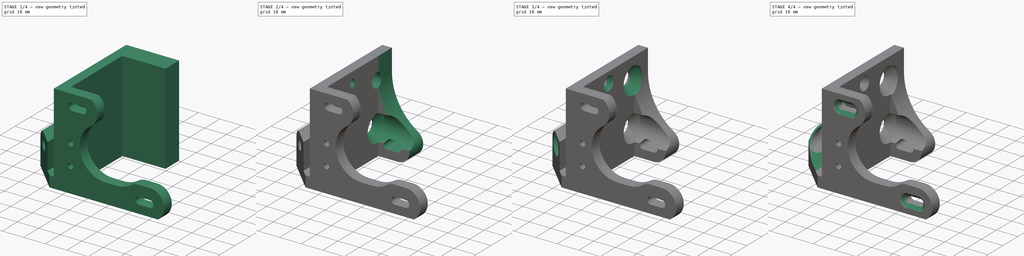
[diagram: build sequence overview — one tinted view per stage of 4, left to right]
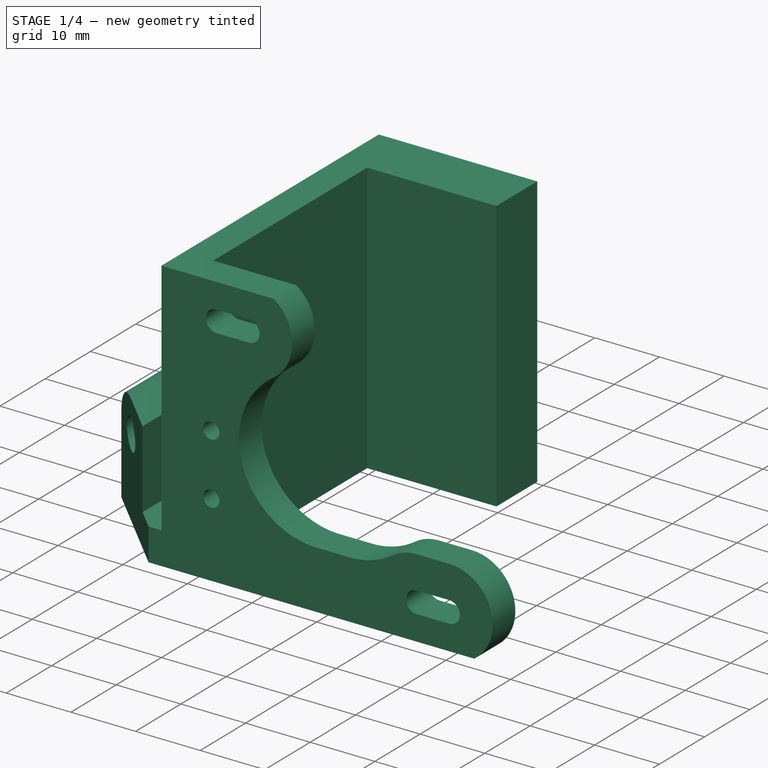
[diagram: stage 1 of 4 — iso view after this stage's code; geometry added in this stage tinted green]
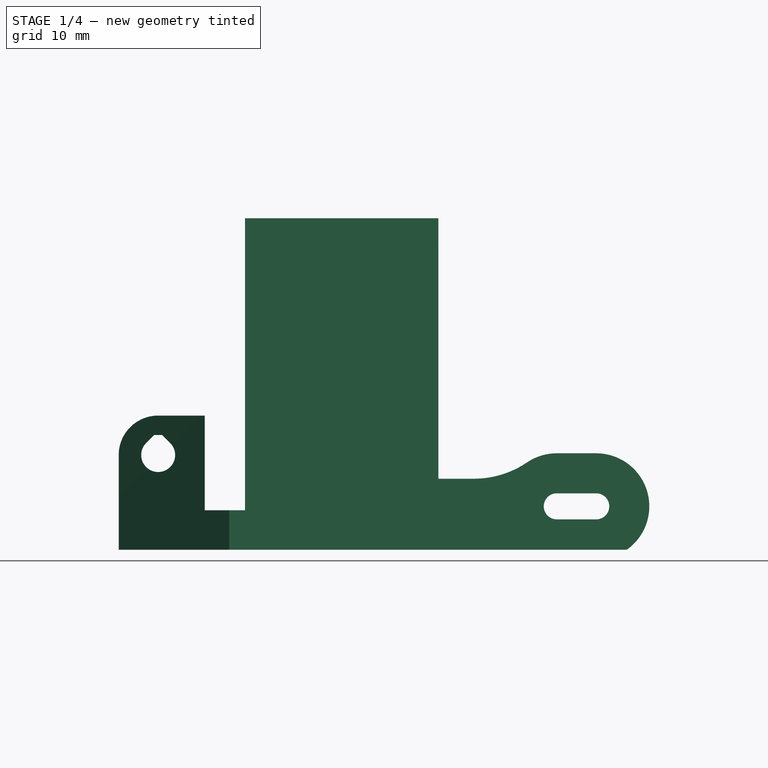
[diagram: stage 1 of 4 — front view after this stage's code; geometry added in this stage tinted green]
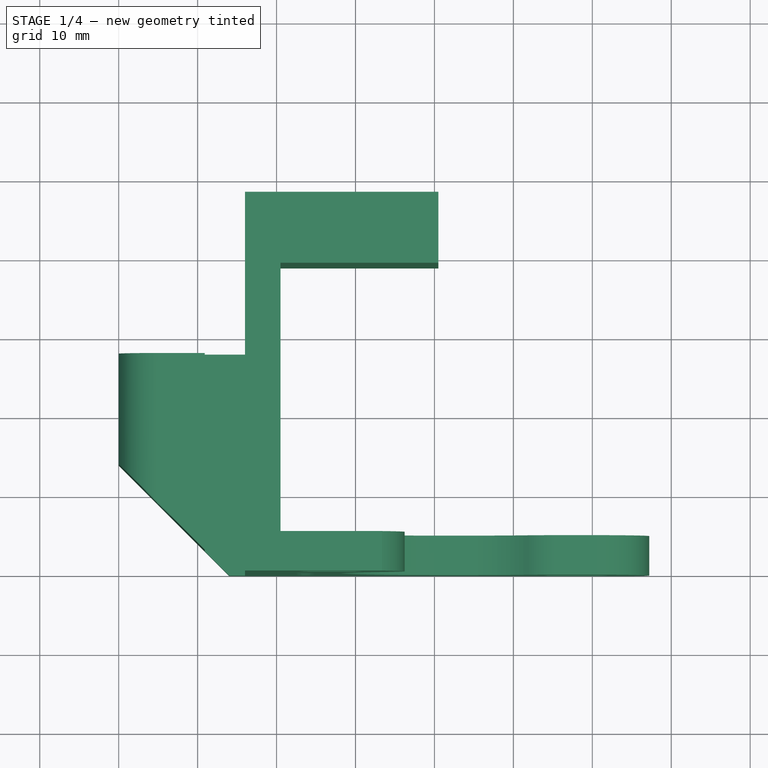
[diagram: stage 1 of 4 — top view after this stage's code; geometry added in this stage tinted green]
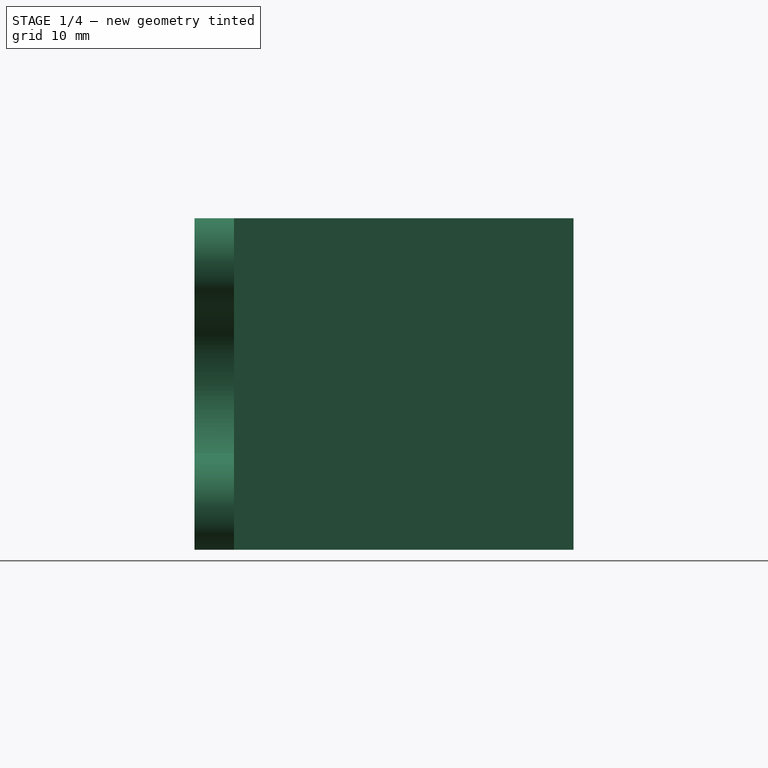
[diagram: stage 1 of 4 — right view after this stage's code; geometry added in this stage tinted green]
FCSTD DOCUMENT  (FreeCAD 0.17R13522 (Git))
Label: 02_548_y-motor-bracket
License: All rights reserved
LicenseURL: http://en.wikipedia.org/wiki/All_rights_reserved
objects: Sketcher::SketchObject×27, PartDesign::SubtractiveLoft×7, PartDesign::Pocket×5, PartDesign::Pad×1, Spreadsheet::Sheet×1, PartDesign::Body×1
note: 54 computed .brp shape members not serialized (recipe doc carries the construction recipe); baked Part::Feature solids carry a one-line shape summary decoded from their .brp

FEATURE [Sketcher::SketchObject] Sketch
  MapMode = 5
  Support = -> [XY_Plane]
  expr: Constraints[25] = sheet1.ExtrusionPlateX
  expr: Constraints[22] = sheet1.ExtrusionInsetX
  expr: Constraints[19] = sheet1.FacePlateDY
  expr: Constraints[21] = sheet1.dy
  expr: Constraints[23] = sheet1.ExtBossDy
  expr: Constraints[31] = sheet1.StepperDepth
  sketch-geometry (11):
    g0: LineSegment StartX=0 StartY=28 StartZ=0 EndX=0 EndY=14 EndZ=0
    g1: LineSegment StartX=0 StartY=14 StartZ=0 EndX=14 EndY=0 EndZ=0
    g2: LineSegment StartX=14 StartY=0 StartZ=0 EndX=67.5 EndY=0 EndZ=0
    g3: LineSegment StartX=67.5 StartY=0 StartZ=0 EndX=67.5 EndY=5 EndZ=0
    g4: LineSegment StartX=67.5 StartY=5 StartZ=0 EndX=20.5 EndY=5 EndZ=0
    g5: LineSegment StartX=20.5 StartY=5 StartZ=0 EndX=20.5 EndY=39 EndZ=0
    g6: LineSegment StartX=40.5 StartY=48 StartZ=0 EndX=16 EndY=48 EndZ=0
    g7: LineSegment StartX=16 StartY=48 StartZ=0 EndX=16 EndY=28 EndZ=0
    g8: LineSegment StartX=16 StartY=28 StartZ=0 EndX=0 EndY=28 EndZ=0
    g9: LineSegment StartX=40.5 StartY=48 StartZ=0 EndX=40.5 EndY=39 EndZ=0
    g10: LineSegment StartX=40.5 StartY=39 StartZ=0 EndX=20.5 EndY=39 EndZ=0
  constraints (33):
    c: Coincident(g0,g1)
    c: Coincident(g1,g2)
    c: Coincident(g2,g3)
    c: Coincident(g3,g4)
    c: Coincident(g4,g5)
    c: Coincident(g6,g7)
    c: Coincident(g7,g8)
    c: Horizontal(g8)
    c: Horizontal(g6)
    c: Horizontal(g4)
    c: Horizontal(g2)
    c: Vertical(g0)
    c: Vertical(g7)
    c: Vertical(g5)
    c: Vertical(g3)
    c: Angle(g1,g-1) = 0.785398
    c: Coincident(g8,g0)
    c: PointOnObject(g0,g-2)
    c: PointOnObject(g1,g-1)
    c: Distance(g3) = 5
    c: DistanceX(g-2,g2) = 67.5
    c: DistanceY(g-1,g6) = 48
    c: DistanceX(g-2,g7) = 16
    c: DistanceY(g-1,g0) = 28
    c: DistanceX(g-2,g1) = 14
    c: Distance(g5,g7) = 4.5
    c: Coincident(g9,g10)
    c: Horizontal(g10)
    c: Vertical(g9)
    c: Coincident(g10,g5)
    c: Coincident(g9,g6)
    c: Distance(g9,g4) = 34
    c: Distance(g9,g5) = 20
FEATURE [PartDesign::Pad] Pad
  Length = 42
  Length2 = 100
  Profile = -> Sketch
  Type = 0
FEATURE [Spreadsheet::Sheet] Spreadsheet  label="sheet1"
  cells = A1=Nema17BoltSpacing; B1(Nema17BoltSpacing)=31; A2=TensionLength; B2(TensionLength)=5; A3=SwitchBoltSpacing; B3(SwitchBoltSpacing)=9.5; A4=StepperH1X; B4(StepperH1X)=24.5; A5=StepperH2Z; B5(StepperH2Z)=5.5; A6=SwitchX; B6(SwitchX)=23.699999999999999; A7=SwitchH2Z; B7(SwitchH2Z)=11.5; A8=ExtrChannelBoltX; B8(ExtrChannelBoltX)=5; A9=ExtrChannelBoltZ; B9(ExtrChannelBoltZ)=12; A10=AcrylicSpace; B10(AcrylicSpace)=5.0999999999999996; A11=StepperFaceBoss; B11(StepperFaceBoss)=22; A12=M3Clearance; B12(M3Clearance)=3.2999999999999998; A13=SwitchSelfTap; B13(SwitchSelfTap)=2.5; A14=M4Clearance; B14(M4Clearance)=4.2999999999999998; A15=M6Clearance; B15(M6Clearance)=6.2999999999999998; A16=StepperDepth; B16(StepperDepth)=34; A17=dy; B17(dy)=48; A18=dz; B18(dz)=42; A19=ExtBossDy; B19(ExtBossDy)=28; A20=RailEndBolt2Z; B20(RailEndBolt2Z)=32; A21=RailEndBolt2Y; B21(RailEndBolt2Y)=10; A22=RailEndBolt1Z; B22(RailEndBolt1Z)=12; A23=RailEndBolt1Y; B23(RailEndBolt1Y)=10; A24=FacePlateDY; B24(FacePlateDY)=5; A25=ExtrusionInsetX; B25(ExtrusionInsetX)=16; A26=ExtrusionPlateX; B26(ExtrusionPlateX)=4.5; A27=SidePlateHole1Y; B27(SidePlateHole1Y)==sheet1.dy - 38; A28=SidePlateHole1Z; B28(SidePlateHole1Z)=12; A29=SidePlateHole2Y; B29(SidePlateHole2Y)==sheet1.dy - 26; A30=SidePlateHole2Z; B30(SidePlateHole2Z)=37; A31=RodHoleY; B31(RodHoleY)==sheet1.dy - 40; A32=RodHoleZ; B32(RodHoleZ)=30
FEATURE [Sketcher::SketchObject] Sketch002
  MapMode = 5
  Placement = pos=(0,0,0) rot=(1,0,0;1.5708rad)
  Support = -> [XZ_Plane]
  expr: Constraints[71] = sheet1.SwitchSelfTap / 2
  expr: Constraints[0] = sheet1.StepperH2Z
  expr: Constraints[50] = sheet1.StepperFaceBoss / 2 + 1
  expr: Constraints[45] = sheet1.dz
  expr: Constraints[43] = sheet1.M3Clearance / 2
  expr: Constraints[9] = sheet1.StepperH1X
  expr: Constraints[44] = sheet1.TensionLength
  expr: Constraints[25] = sheet1.AcrylicSpace
  expr: Constraints[11] = sheet1.ExtrChannelBoltX
  expr: Constraints[26] = sheet1.ExtrusionInsetX
  expr: Constraints[6] = sheet1.SwitchX
  expr: Constraints[2] = sheet1.Nema17BoltSpacing
  expr: Constraints[5] = sheet1.SwitchX
  expr: Constraints[73] = sheet1.M4Clearance / 2
  expr: Constraints[4] = sheet1.SwitchH2Z
  expr: Constraints[8] = sheet1.Nema17BoltSpacing / 2
  expr: Constraints[7] = sheet1.Nema17BoltSpacing / 2
  expr: Constraints[10] = sheet1.ExtrChannelBoltZ
  expr: Constraints[3] = sheet1.SwitchBoltSpacing
  expr: Constraints[1] = sheet1.Nema17BoltSpacing
  expr: Constraints[54] = sheet1.TensionLength
  sketch-geometry (37):
    g0: GeomPoint X=5 Y=12 Z=0
    g1: GeomPoint X=23.7 Y=11.5 Z=0
    g2: GeomPoint X=23.7 Y=21 Z=0
    g3: GeomPoint X=40 Y=21 Z=0
    g4: GeomPoint X=24.5 Y=36.5 Z=0
    g5: GeomPoint X=55.5 Y=5.5 Z=0
    g6: ArcOfCircle CenterX=5 CenterY=12 CenterZ=0 NormalX=0 NormalY=0 NormalZ=1 AngleXU=0 Radius=5 StartAngle=1.5708 EndAngle=3.14159
    g7: LineSegment StartX=5 StartY=17 StartZ=0 EndX=10.9 EndY=17 EndZ=0
    g8: LineSegment StartX=10.9 StartY=17 StartZ=0 EndX=10.9 EndY=5 EndZ=0
    g9: LineSegment StartX=10.9 StartY=5 StartZ=0 EndX=16 EndY=5 EndZ=0
    g10: LineSegment StartX=16 StartY=5 StartZ=0 EndX=16 EndY=42 EndZ=0
    g11: LineSegment StartX=16 StartY=42 StartZ=0 EndX=33.364 EndY=42 EndZ=0
    g12: ArcOfCircle [constr] CenterX=24.5 CenterY=36.5 CenterZ=0 NormalX=0 NormalY=0 NormalZ=1 AngleXU=0 Radius=1.65 StartAngle=1.5708 EndAngle=4.71239
    g13: ArcOfCircle [constr] CenterX=29.5 CenterY=36.5 CenterZ=0 NormalX=0 NormalY=0 NormalZ=1 AngleXU=0 Radius=1.65 StartAngle=4.71239 EndAngle=7.85398
    g14: LineSegment [constr] StartX=24.5 StartY=34.85 StartZ=0 EndX=29.5 EndY=34.85 EndZ=0
    g15: LineSegment [constr] StartX=24.5 StartY=38.15 StartZ=0 EndX=29.5 EndY=38.15 EndZ=0
    g16: ArcOfCircle [constr] CenterX=55.5 CenterY=5.5 CenterZ=0 NormalX=0 NormalY=0 NormalZ=1 AngleXU=0 Radius=1.65 StartAngle=1.5708 EndAngle=4.71239
    g17: ArcOfCircle [constr] CenterX=60.5 CenterY=5.5 CenterZ=0 NormalX=0 NormalY=0 NormalZ=1 AngleXU=0 Radius=1.65 StartAngle=4.71239 EndAngle=7.85398
    g18: LineSegment [constr] StartX=55.5 StartY=3.85 StartZ=0 EndX=60.5 EndY=3.85 EndZ=0
    g19: LineSegment [constr] StartX=55.5 StartY=7.15 StartZ=0 EndX=60.5 EndY=7.15 EndZ=0
    g20: ArcOfCircle CenterX=29.5 CenterY=36.5 CenterZ=0 NormalX=0 NormalY=0 NormalZ=1 AngleXU=0 Radius=6.72165 StartAngle=5.3078 EndAngle=7.24155
    g21: ArcOfCircle CenterX=40 CenterY=21 CenterZ=0 NormalX=0 NormalY=0 NormalZ=1 AngleXU=0 Radius=12 StartAngle=2.16621 EndAngle=4.71239
    g22: LineSegment StartX=40 StartY=9 StartZ=0 EndX=45 EndY=9 EndZ=0
    g23: LineSegment [constr] StartX=40 StartY=21 StartZ=0 EndX=45 EndY=21 EndZ=0
    g24: ArcOfCircle CenterX=45 CenterY=21 CenterZ=0 NormalX=0 NormalY=0 NormalZ=1 AngleXU=0 Radius=12 StartAngle=4.71239 EndAngle=5.3078
    g25: ArcOfCircle CenterX=55.5 CenterY=5.5 CenterZ=0 NormalX=0 NormalY=0 NormalZ=1 AngleXU=0 Radius=6.72165 StartAngle=1.5708 EndAngle=2.16621
    g26: LineSegment StartX=55.5 StartY=12.2216 StartZ=0 EndX=60.5 EndY=12.2216 EndZ=0
    g27: ArcOfCircle CenterX=60.5 CenterY=5.5 CenterZ=0 NormalX=0 NormalY=0 NormalZ=1 AngleXU=0 Radius=6.72165 StartAngle=5.32482 EndAngle=7.85398
    g28: Circle [constr] CenterX=23.7 CenterY=11.5 CenterZ=0 NormalX=0 NormalY=0 NormalZ=1 AngleXU=0 Radius=1.25
    g29: Circle [constr] CenterX=23.7 CenterY=21 CenterZ=0 NormalX=0 NormalY=0 NormalZ=1 AngleXU=0 Radius=1.25
    g30: Circle [constr] CenterX=5 CenterY=12 CenterZ=0 NormalX=0 NormalY=0 NormalZ=1 AngleXU=0 Radius=2.15
    g31: LineSegment StartX=-5 StartY=47 StartZ=0 EndX=69.364 EndY=47 EndZ=0
    g32: LineSegment StartX=69.364 StartY=47 StartZ=0 EndX=69.364 EndY=-5 EndZ=0
    g33: LineSegment StartX=69.364 StartY=-5 StartZ=0 EndX=-5 EndY=-5 EndZ=0
    g34: LineSegment StartX=-5 StartY=-5 StartZ=0 EndX=-5 EndY=47 EndZ=0
    g35: LineSegment StartX=0 StartY=12 StartZ=0 EndX=0 EndY=0 EndZ=0
    g36: LineSegment StartX=0 StartY=0 StartZ=0 EndX=64.364 EndY=0 EndZ=0
  constraints (91):
    c: DistanceY(g-1,g5) = 5.5
    c: DistanceX(g4,g5) = 31
    c: DistanceY(g5,g4) = 31
    c: DistanceY(g1,g2) = 9.5
    c: DistanceY(g-1,g1) = 11.5
    c: DistanceX(g-2,g2) = 23.7
    c: DistanceX(g-2,g1) = 23.7
    c: DistanceX(g3,g5) = 15.5
    c: DistanceY(g5,g3) = 15.5
    c: DistanceX(g-2,g4) = 24.5
    c: DistanceY(g-1,g0) = 12
    c: DistanceX(g-1,g0) = 5
    c: Coincident(g6,g0)
    c: PointOnObject(g6,g-2)
    c: Tangent(g6,g-2)
    c: Coincident(g7,g8)
    c: Coincident(g8,g9)
    c: Coincident(g9,g10)
    c: Coincident(g10,g11)
    c: Horizontal(g7)
    c: Horizontal(g9)
    c: Horizontal(g11)
    c: Vertical(g8)
    c: Vertical(g10)
    c: Tangent(g6,g7) = 1.5708
    c: Distance(g9) = 5.1
    c: DistanceX(g-2,g9) = 16
    c: Tangent(g12,g15) = 1.5708
    c: Tangent(g12,g14) = -1.5708
    c: Tangent(g14,g13) = -1.5708
    c: Tangent(g15,g13) = 1.5708
    c: Horizontal(g14)
    c: Equal(g12,g13)
    c: Coincident(g12,g4)
    c: Tangent(g16,g19) = 1.5708
    c: Tangent(g16,g18) = -1.5708
    c: Tangent(g18,g17) = -1.5708
    c: Tangent(g19,g17) = 1.5708
    c: Horizontal(g18)
    c: Equal(g16,g17)
    c: Coincident(g16,g5)
    c: Equal(g12,g16)
    c: Equal(g15,g19)
    c: Radius(g13) = 1.65
    c: Distance(g15) = 5
    c: DistanceY(g-1,g10) = 42
    c: Coincident(g20,g11)
    c: Coincident(g20,g13)
    c: Coincident(g3,g21)
    c: Tangent(g21,g20) = 1.5708
    c: Radius(g21) = 12
    c: DistanceY(g-1,g9) = 5
    c: Horizontal(g22)
    c: Tangent(g22,g21) = -1.5708
    c: Distance(g22) = 5
    c: Horizontal(g23)
    c: Coincident(g23,g3)
    c: Coincident(g24,g23)
    c: Tangent(g24,g22) = -1.5708
    c: Coincident(g25,g26)
    c: PointOnObject(g27,g-1)
    c: Horizontal(g26)
    c: Tangent(g25,g24) = 1.5708
    c: Tangent(g26,g27) = 1.5708
    c: Equal(g20,g25)
    c: Equal(g25,g27)
    c: Equal(g26,g22)
    c: Coincident(g17,g27)
    c: Coincident(g30,g0)
    c: Coincident(g29,g2)
    c: Coincident(g28,g1)
    c: Radius(g29) = 1.25
    c: Equal(g29,g28)
    c: Radius(g30) = 2.15
    c: Coincident(g31,g32)
    c: Coincident(g32,g33)
    c: Coincident(g33,g34)
    c: Coincident(g34,g31)
    c: Horizontal(g31)
    c: Horizontal(g33)
    c: Vertical(g32)
    c: Vertical(g34)
    c: Distance(g31,g11) = 5
    c: Distance(g27,g33) = 5
    c: Distance(g27,g32) = 5
    c: Distance(g-1,g34) = 5
    c: Coincident(g35,g36)
    c: Horizontal(g36)
    c: Vertical(g35)
    c: Coincident(g35,g6)
    c: Coincident(g36,g27)
FEATURE [PartDesign::Pocket] Pocket
  BaseFeature = -> Pad
  Length = 28
  Length2 = 100
  Profile = -> Sketch002
  Type = 0
  expr: Length = sheet1.ExtBossDy
FEATURE [Sketcher::SketchObject] Sketch003
  MapMode = 5
  Placement = pos=(0,0,0) rot=(1,0,0;1.5708rad)
  Support = -> [XZ_Plane]
  expr: Constraints[54] = sheet1.TensionLength
  expr: Constraints[1] = sheet1.Nema17BoltSpacing
  expr: Constraints[3] = sheet1.SwitchBoltSpacing
  expr: Constraints[10] = sheet1.ExtrChannelBoltZ
  expr: Constraints[7] = sheet1.Nema17BoltSpacing / 2
  expr: Constraints[8] = sheet1.Nema17BoltSpacing / 2
  expr: Constraints[80] = sheet1.M4Clearance / 2
  expr: Constraints[4] = sheet1.SwitchH2Z
  expr: Constraints[5] = sheet1.SwitchX
  expr: Constraints[2] = sheet1.Nema17BoltSpacing
  expr: Constraints[6] = sheet1.SwitchX
  expr: Constraints[11] = sheet1.ExtrChannelBoltX
  expr: Constraints[25] = sheet1.AcrylicSpace
  expr: Constraints[9] = sheet1.StepperH1X
  expr: Constraints[43] = sheet1.M3Clearance / 2
  expr: Constraints[50] = sheet1.StepperFaceBoss / 2 + 1
  expr: Constraints[0] = sheet1.StepperH2Z
  expr: Constraints[44] = sheet1.TensionLength
  expr: Constraints[70] = sheet1.SwitchSelfTap / 2
  sketch-geometry (34):
    g0: GeomPoint X=5 Y=12 Z=0
    g1: GeomPoint X=23.7 Y=11.5 Z=0
    g2: GeomPoint X=23.7 Y=21 Z=0
    g3: GeomPoint X=40 Y=21 Z=0
    g4: GeomPoint X=24.5 Y=36.5 Z=0
    g5: GeomPoint X=55.5 Y=5.5 Z=0
    g6: ArcOfCircle [constr] CenterX=5 CenterY=12 CenterZ=0 NormalX=0 NormalY=0 NormalZ=1 AngleXU=0 Radius=5 StartAngle=1.5708 EndAngle=3.1416
    g7: LineSegment [constr] StartX=5 StartY=17 StartZ=0 EndX=9.9 EndY=17 EndZ=0
    g8: LineSegment [constr] StartX=9.9 StartY=17 StartZ=0 EndX=9.9 EndY=5 EndZ=0
    g9: LineSegment [constr] StartX=9.9 StartY=5 StartZ=0 EndX=15 EndY=5 EndZ=0
    g10: LineSegment [constr] StartX=15 StartY=5 StartZ=0 EndX=15 EndY=42 EndZ=0
    g11: LineSegment [constr] StartX=15 StartY=42 StartZ=0 EndX=33.364 EndY=42 EndZ=0
    g12: ArcOfCircle CenterX=24.5 CenterY=36.5 CenterZ=0 NormalX=0 NormalY=0 NormalZ=1 AngleXU=0 Radius=1.65 StartAngle=1.5708 EndAngle=4.71239
    g13: ArcOfCircle CenterX=29.5 CenterY=36.5 CenterZ=0 NormalX=0 NormalY=0 NormalZ=1 AngleXU=0 Radius=1.65 StartAngle=4.71239 EndAngle=7.85398
    g14: LineSegment StartX=24.5 StartY=34.85 StartZ=0 EndX=29.5 EndY=34.85 EndZ=0
    g15: LineSegment StartX=24.5 StartY=38.15 StartZ=0 EndX=29.5 EndY=38.15 EndZ=0
    g16: ArcOfCircle CenterX=55.5 CenterY=5.5 CenterZ=0 NormalX=0 NormalY=0 NormalZ=1 AngleXU=0 Radius=1.65 StartAngle=1.5708 EndAngle=4.71239
    g17: ArcOfCircle CenterX=60.5 CenterY=5.5 CenterZ=0 NormalX=0 NormalY=0 NormalZ=1 AngleXU=0 Radius=1.65 StartAngle=4.71239 EndAngle=7.85398
    g18: LineSegment StartX=55.5 StartY=3.85 StartZ=0 EndX=60.5 EndY=3.85 EndZ=0
    g19: LineSegment StartX=55.5 StartY=7.15 StartZ=0 EndX=60.5 EndY=7.15 EndZ=0
    g20: ArcOfCircle [constr] CenterX=29.5 CenterY=36.5 CenterZ=0 NormalX=0 NormalY=0 NormalZ=1 AngleXU=0 Radius=6.72165 StartAngle=5.3078 EndAngle=7.24155
    g21: ArcOfCircle [constr] CenterX=40 CenterY=21 CenterZ=0 NormalX=0 NormalY=0 NormalZ=1 AngleXU=0 Radius=12 StartAngle=2.16621 EndAngle=4.71239
    g22: LineSegment [constr] StartX=40 StartY=9 StartZ=0 EndX=45 EndY=9 EndZ=0
    g23: LineSegment [constr] StartX=40 StartY=21 StartZ=0 EndX=45 EndY=21 EndZ=0
    g24: ArcOfCircle [constr] CenterX=45 CenterY=21 CenterZ=0 NormalX=0 NormalY=0 NormalZ=1 AngleXU=0 Radius=12 StartAngle=4.71239 EndAngle=5.3078
    g25: ArcOfCircle [constr] CenterX=55.5 CenterY=5.5 CenterZ=0 NormalX=0 NormalY=0 NormalZ=1 AngleXU=0 Radius=6.72165 StartAngle=1.5708 EndAngle=2.16621
    g26: LineSegment [constr] StartX=55.5 StartY=12.2216 StartZ=0 EndX=60.5 EndY=12.2216 EndZ=0
    g27: ArcOfCircle [constr] CenterX=60.5 CenterY=5.5 CenterZ=0 NormalX=0 NormalY=0 NormalZ=1 AngleXU=0 Radius=6.72165 StartAngle=5.32482 EndAngle=7.85398
    g28: Circle CenterX=23.7 CenterY=11.5 CenterZ=0 NormalX=0 NormalY=0 NormalZ=1 AngleXU=0 Radius=1.25
    g29: Circle CenterX=23.7 CenterY=21 CenterZ=0 NormalX=0 NormalY=0 NormalZ=1 AngleXU=0 Radius=1.25
    g30: LineSegment StartX=3.47972 StartY=13.5203 StartZ=0 EndX=4.5 EndY=14.5406 EndZ=0
    g31: LineSegment StartX=4.5 StartY=14.5406 StartZ=0 EndX=5.5 EndY=14.5406 EndZ=0
    g32: LineSegment StartX=5.5 StartY=14.5406 StartZ=0 EndX=6.52028 EndY=13.5203 EndZ=0
    g33: ArcOfCircle CenterX=5 CenterY=12 CenterZ=0 NormalX=0 NormalY=0 NormalZ=1 AngleXU=0 Radius=2.15 StartAngle=2.35619 EndAngle=7.06858
  constraints (82):
    c: DistanceY(g-1,g5) = 5.5
    c: DistanceX(g4,g5) = 31
    c: DistanceY(g5,g4) = 31
    c: DistanceY(g1,g2) = 9.5
    c: DistanceY(g-1,g1) = 11.5
    c: DistanceX(g-2,g2) = 23.7
    c: DistanceX(g-2,g1) = 23.7
    c: DistanceX(g3,g5) = 15.5
    c: DistanceY(g5,g3) = 15.5
    c: DistanceX(g-2,g4) = 24.5
    c: DistanceY(g-1,g0) = 12
    c: DistanceX(g-1,g0) = 5
    c: Coincident(g6,g0)
    c: PointOnObject(g6,g-2)
    c: Tangent(g6,g-2)
    c: Coincident(g7,g8)
    c: Coincident(g8,g9)
    c: Coincident(g9,g10)
    c: Coincident(g10,g11)
    c: Horizontal(g7)
    c: Horizontal(g9)
    c: Horizontal(g11)
    c: Vertical(g8)
    c: Vertical(g10)
    c: Tangent(g6,g7) = 1.5708
    c: Distance(g9) = 5.1
    c: DistanceX(g-2,g9) = 15
    c: Tangent(g12,g15) = 1.5708
    c: Tangent(g12,g14) = -1.5708
    c: Tangent(g14,g13) = -1.5708
    c: Tangent(g15,g13) = 1.5708
    c: Horizontal(g14)
    c: Equal(g12,g13)
    c: Coincident(g12,g4)
    c: Tangent(g16,g19) = 1.5708
    c: Tangent(g16,g18) = -1.5708
    c: Tangent(g18,g17) = -1.5708
    c: Tangent(g19,g17) = 1.5708
    c: Horizontal(g18)
    c: Equal(g16,g17)
    c: Coincident(g16,g5)
    c: Equal(g12,g16)
    c: Equal(g15,g19)
    c: Radius(g13) = 1.65
    c: Distance(g15) = 5
    c: DistanceY(g-1,g10) = 42
    c: Coincident(g20,g11)
    c: Coincident(g20,g13)
    c: Coincident(g3,g21)
    c: Tangent(g21,g20) = 1.5708
    c: Radius(g21) = 12
    c: DistanceY(g-1,g9) = 5
    c: Horizontal(g22)
    c: Tangent(g22,g21) = -1.5708
    c: Distance(g22) = 5
    c: Horizontal(g23)
    c: Coincident(g23,g3)
    c: Coincident(g24,g23)
    c: Tangent(g24,g22) = -1.5708
    c: Coincident(g25,g26)
    c: PointOnObject(g27,g-1)
    c: Horizontal(g26)
    c: Tangent(g25,g24) = 1.5708
    c: Tangent(g26,g27) = 1.5708
    c: Equal(g20,g25)
    c: Equal(g25,g27)
    c: Equal(g26,g22)
    c: Coincident(g17,g27)
    c: Coincident(g29,g2)
    c: Coincident(g28,g1)
    c: Radius(g29) = 1.25
    c: Equal(g29,g28)
    c: Coincident(g30,g31)
    c: Coincident(g31,g32)
    c: Horizontal(g31)
    c: Equal(g30,g32)
    c: Coincident(g33,g0)
    c: Tangent(g33,g30) = 1.5708
    c: Tangent(g33,g32) = 1.5708
    c: Distance(g31) = 1
    c: Radius(g33) = 2.15
    c: Angle(g-1,g30) = 0.785398
FEATURE [PartDesign::Pocket] Pocket001
  BaseFeature = -> Pocket
  Length = 39
  Length2 = 100
  Profile = -> Sketch003
  Type = 0
  expr: Length = sheet1.FacePlateDY + sheet1.StepperDepth
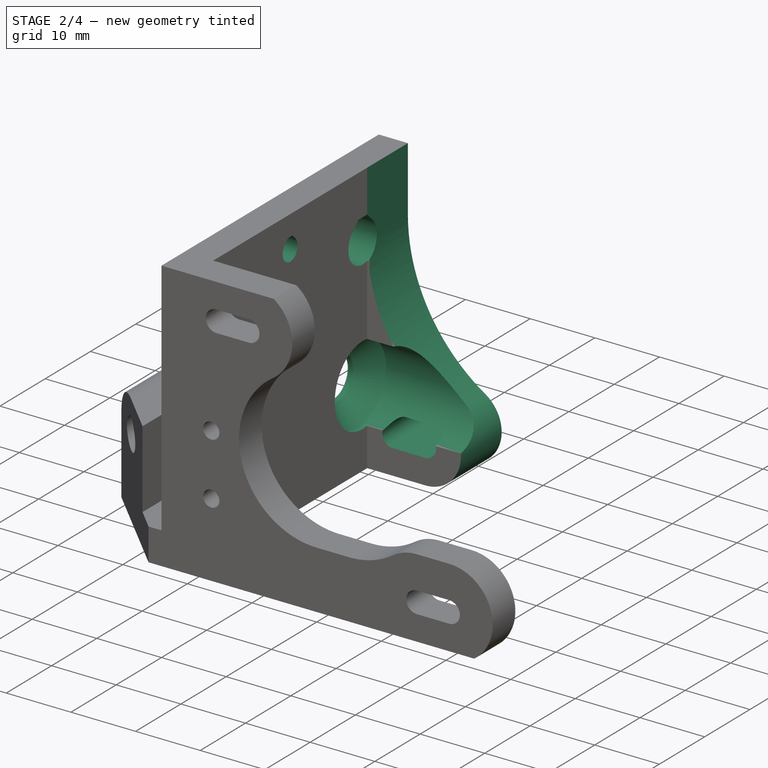
[diagram: stage 2 of 4 — iso view after this stage's code; geometry added in this stage tinted green]
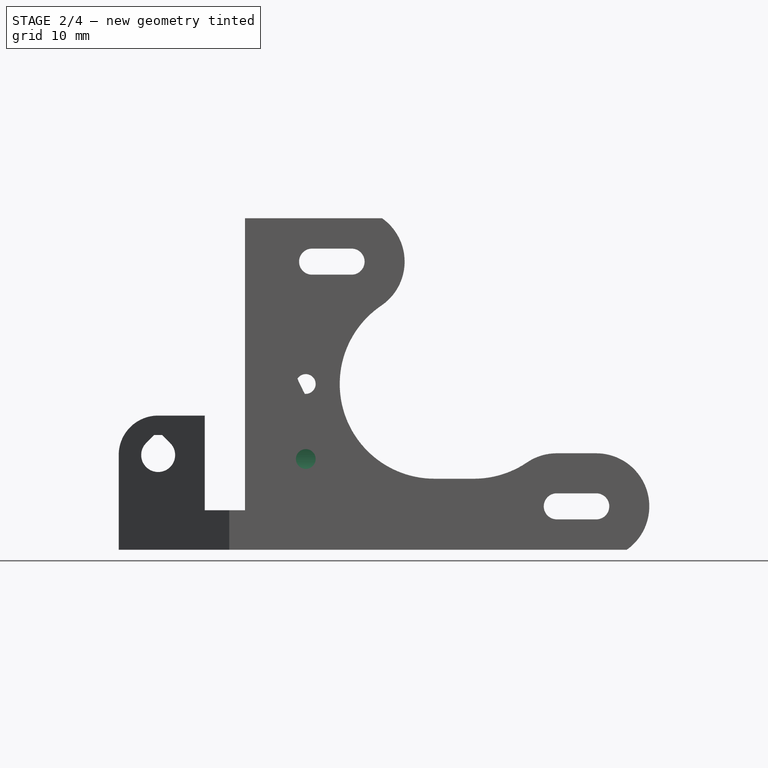
[diagram: stage 2 of 4 — front view after this stage's code; geometry added in this stage tinted green]
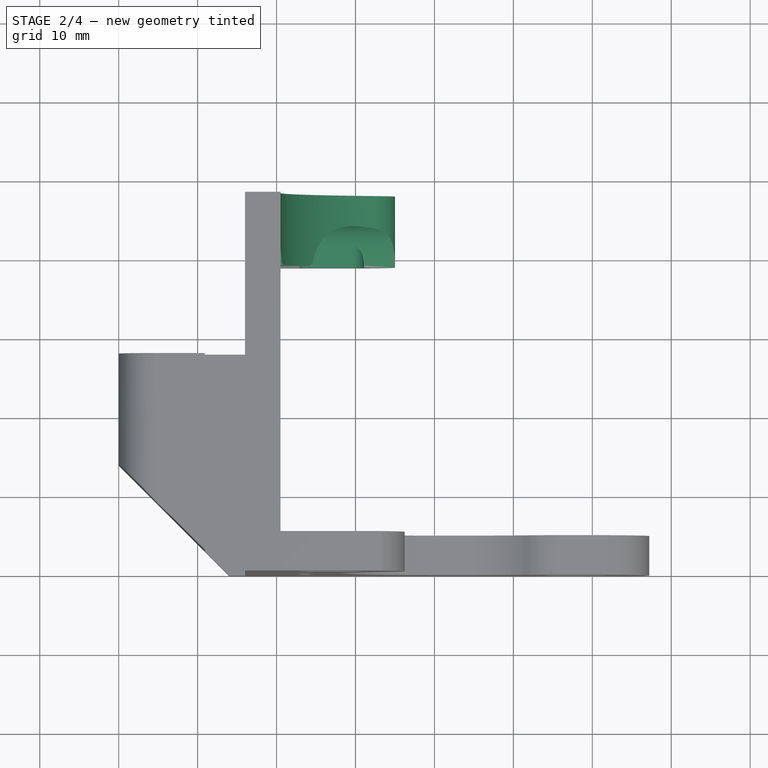
[diagram: stage 2 of 4 — top view after this stage's code; geometry added in this stage tinted green]
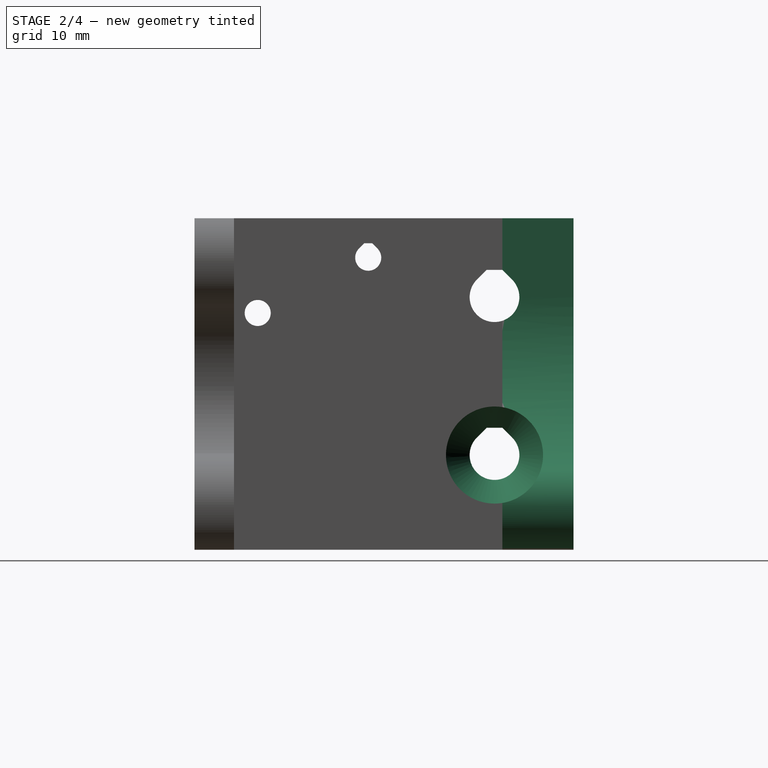
[diagram: stage 2 of 4 — right view after this stage's code; geometry added in this stage tinted green]
FEATURE [Sketcher::SketchObject] Sketch004
  AttachmentOffset = pos=(0,0,-48) rot=(0,0,1;0rad)
  MapMode = 5
  Placement = pos=(0,48,5e-12) rot=(1,0,0;1.5708rad)
  Support = -> [XZ_Plane]
  expr: Constraints[23] = sheet1.ExtrusionInsetX + sheet1.ExtrusionPlateX
  expr: AttachmentOffset.Base.z = -1 * sheet1.dy
  expr: Constraints[6] = sheet1.TensionLength
  expr: Constraints[25] = sheet1.RailEndBolt2Z
  expr: Constraints[7] = sheet1.M3Clearance / 2
  expr: Constraints[8] = sheet1.StepperH1X
  expr: Constraints[9] = sheet1.StepperH2Z
  sketch-geometry (10):
    g0: ArcOfCircle CenterX=24.5 CenterY=5.5 CenterZ=0 NormalX=0 NormalY=0 NormalZ=1 AngleXU=0 Radius=1.65 StartAngle=1.5708 EndAngle=4.71239
    g1: ArcOfCircle CenterX=29.5 CenterY=5.5 CenterZ=0 NormalX=0 NormalY=0 NormalZ=1 AngleXU=0 Radius=1.65 StartAngle=4.71239 EndAngle=7.85398
    g2: LineSegment StartX=24.5 StartY=3.85 StartZ=0 EndX=29.5 EndY=3.85 EndZ=0
    g3: LineSegment StartX=24.5 StartY=7.15 StartZ=0 EndX=29.5 EndY=7.15 EndZ=0
    g4: ArcOfCircle CenterX=29.5 CenterY=5.5 CenterZ=0 NormalX=0 NormalY=0 NormalZ=1 AngleXU=0 Radius=5.5 StartAngle=4.71239 EndAngle=7.28452
    g5: ArcOfCircle CenterX=46.4655 CenterY=32 CenterZ=0 NormalX=0 NormalY=0 NormalZ=1 AngleXU=0 Radius=25.9655 StartAngle=3.14159 EndAngle=4.14293
    g6: LineSegment StartX=20.5 StartY=32 StartZ=0 EndX=20.5 EndY=45 EndZ=0
    g7: LineSegment StartX=20.5 StartY=45 StartZ=0 EndX=45.5 EndY=45 EndZ=0
    g8: LineSegment StartX=45.5 StartY=45 StartZ=0 EndX=45.5 EndY=0 EndZ=0
    g9: LineSegment StartX=45.5 StartY=0 StartZ=0 EndX=29.5 EndY=0 EndZ=0
  constraints (27):
    c: Tangent(g0,g3) = 1.5708
    c: Tangent(g0,g2) = -1.5708
    c: Tangent(g2,g1) = -1.5708
    c: Tangent(g3,g1) = 1.5708
    c: Horizontal(g2)
    c: Equal(g0,g1)
    c: Distance(g3) = 5
    c: Radius(g1) = 1.65
    c: DistanceX(g-2,g0) = 24.5
    c: DistanceY(g-1,g0) = 5.5
    c: Coincident(g1,g4)
    c: Tangent(g-1,g4)
    c: PointOnObject(g4,g-1)
    c: Tangent(g4,g5) = 1.5708
    c: Coincident(g6,g7)
    c: Coincident(g7,g8)
    c: Coincident(g8,g9)
    c: Horizontal(g9)
    c: Horizontal(g7)
    c: Vertical(g6)
    c: Vertical(g8)
    c: Coincident(g4,g9)
    c: Distance(g7,g6) = 25
    c: DistanceX(g-2,g5) = 20.5
    c: Distance(g8) = 45
    c: DistanceY(g-1,g5) = 32
    c: Tangent(g5,g6) = 1.5708
FEATURE [PartDesign::Pocket] Pocket002
  BaseFeature = -> Pocket001
  Length = 9
  Length2 = 100
  Profile = -> Sketch004
  Reversed = true
  Type = 0
  expr: Length = sheet1.dy - sheet1.StepperDepth - sheet1.FacePlateDY
FEATURE [Sketcher::SketchObject] Sketch005
  AttachmentOffset = pos=(0,0,16) rot=(0,0,1;0rad)
  MapMode = 5
  Placement = pos=(16,-2e-12,2e-12) rot=(0.57735,0.57735,0.57735;2.0944rad)
  Support = -> [YZ_Plane]
  expr: AttachmentOffset.Base.z = sheet1.ExtrusionInsetX
  expr: Constraints[32] = sheet1.RailEndBolt2Z
  expr: Constraints[33] = sheet1.dy - 10
  expr: Constraints[34] = sheet1.dy - 10
  expr: Constraints[29] = sheet1.M6Clearance / 2
  expr: Constraints[35] = sheet1.M3Clearance / 2
  expr: Constraints[37] = sheet1.M3Clearance / 2
  expr: Constraints[39] = sheet1.SidePlateHole1Z
  expr: Constraints[38] = sheet1.SidePlateHole1Y
  expr: Constraints[40] = sheet1.SidePlateHole2Z
  expr: Constraints[31] = sheet1.RailEndBolt1Z
  expr: Constraints[43] = sheet1.RodHoleZ
  expr: Constraints[42] = sheet1.RodHoleY
  expr: Constraints[41] = sheet1.SidePlateHole2Y
  sketch-geometry (17):
    g0: ArcOfCircle CenterX=38 CenterY=32 CenterZ=0 NormalX=0 NormalY=0 NormalZ=1 AngleXU=0 Radius=3.15 StartAngle=2.35619 EndAngle=7.06858
    g1: ArcOfCircle CenterX=38 CenterY=12 CenterZ=0 NormalX=0 NormalY=0 NormalZ=1 AngleXU=0 Radius=3.15 StartAngle=2.35619 EndAngle=7.06858
    g2: ArcOfCircle CenterX=22 CenterY=37 CenterZ=0 NormalX=0 NormalY=0 NormalZ=1 AngleXU=0 Radius=1.65 StartAngle=2.35619 EndAngle=7.06858
    g3: ArcOfCircle CenterX=10 CenterY=12 CenterZ=0 NormalX=0 NormalY=0 NormalZ=1 AngleXU=0 Radius=1.65 StartAngle=2.35619 EndAngle=7.06858
    g4: LineSegment StartX=35.7726 StartY=14.2274 StartZ=0 EndX=37 EndY=15.4548 EndZ=0
    g5: LineSegment StartX=37 StartY=15.4548 StartZ=0 EndX=39 EndY=15.4548 EndZ=0
    g6: LineSegment StartX=39 StartY=15.4548 StartZ=0 EndX=40.2274 EndY=14.2274 EndZ=0
    g7: LineSegment StartX=35.7726 StartY=34.2274 StartZ=0 EndX=37 EndY=35.4548 EndZ=0
    g8: LineSegment StartX=37 StartY=35.4548 StartZ=0 EndX=39 EndY=35.4548 EndZ=0
    g9: LineSegment StartX=39 StartY=35.4548 StartZ=0 EndX=40.2274 EndY=34.2274 EndZ=0
    g10: LineSegment StartX=20.8333 StartY=38.1667 StartZ=0 EndX=21.5 EndY=38.8335 EndZ=0
    g11: LineSegment StartX=21.5 StartY=38.8335 StartZ=0 EndX=22.5 EndY=38.8335 EndZ=0
    g12: LineSegment StartX=22.5 StartY=38.8335 StartZ=0 EndX=23.1667 EndY=38.1667 EndZ=0
    g13: LineSegment StartX=8.83327 StartY=13.1667 StartZ=0 EndX=9.5 EndY=13.8335 EndZ=0
    g14: LineSegment StartX=9.5 StartY=13.8335 StartZ=0 EndX=10.5 EndY=13.8335 EndZ=0
    g15: LineSegment StartX=10.5 StartY=13.8335 StartZ=0 EndX=11.1667 EndY=13.1667 EndZ=0
    g16: Circle CenterX=8 CenterY=30 CenterZ=0 NormalX=0 NormalY=0 NormalZ=1 AngleXU=0 Radius=1.65
  constraints (50):
    c: Coincident(g4,g5)
    c: Coincident(g5,g6)
    c: Coincident(g7,g8)
    c: Coincident(g8,g9)
    c: Coincident(g10,g11)
    c: Coincident(g11,g12)
    c: Coincident(g13,g14)
    c: Coincident(g14,g15)
    c: Horizontal(g8)
    c: Horizontal(g11)
    c: Horizontal(g14)
    c: Horizontal(g5)
    c: Parallel(g10,g7)
    c: Parallel(g7,g4)
    c: Parallel(g15,g12)
    c: Parallel(g12,g9)
    c: Parallel(g9,g6)
    c: Angle(g4,g-1) = 2.35619
    c: Tangent(g0,g9) = 1.5708
    c: Tangent(g0,g7) = 1.5708
    c: Tangent(g1,g6) = 1.5708
    c: Tangent(g1,g4) = 1.5708
    c: Tangent(g3,g13) = 1.5708
    c: Tangent(g3,g15) = 1.5708
    c: Tangent(g2,g10) = 1.5708
    c: Tangent(g2,g12) = 1.5708
    c: Equal(g14,g11)
    c: Equal(g5,g8)
    c: Distance(g5) = 2
    c: Radius(g0) = 3.15
    c: Equal(g0,g1)
    c: DistanceY(g-1,g1) = 12
    c: DistanceY(g-1,g0) = 32
    c: DistanceX(g-2,g0) = 38
    c: DistanceX(g-2,g1) = 38
    c: Radius(g3) = 1.65
    c: Distance(g14) = 1
    c: Radius(g16) = 1.65
    c: DistanceX(g-2,g3) = 10
    c: DistanceY(g-1,g3) = 12
    c: DistanceY(g-1,g2) = 37
    c: DistanceX(g-2,g2) = 22
    c: DistanceX(g-2,g16) = 8
    c: DistanceY(g-1,g16) = 30
    c: Equal(g7,g9)
    c: Equal(g9,g4)
    c: Equal(g4,g6)
    c: Equal(g13,g15)
    c: Equal(g15,g10)
    c: Equal(g10,g12)
FEATURE [PartDesign::Pocket] Pocket003
  BaseFeature = -> Pocket002
  Length = 4.5
  Length2 = 100
  Profile = -> Sketch005
  Reversed = true
  Type = 1
  expr: Length = sheet1.ExtrusionPlateX
FEATURE [Sketcher::SketchObject] Sketch006
  AttachmentOffset = pos=(0,0,120.5) rot=(0,0,1;0rad)
  MapMode = 5
  Placement = pos=(120.5,-1.4e-11,1.4e-11) rot=(0.57735,0.57735,0.57735;2.0944rad)
  Support = -> [YZ_Plane]
  expr: Constraints[1] = sheet1.dy - sheet1.RailEndBolt1Y
  expr: Constraints[0] = sheet1.RailEndBolt1Z
  expr: AttachmentOffset.Base.z = sheet1.ExtrusionInsetX + sheet1.ExtrusionPlateX + 100
  sketch-geometry (1):
    g0: Circle CenterX=38 CenterY=12 CenterZ=0 NormalX=0 NormalY=0 NormalZ=1 AngleXU=0 Radius=6.15
  constraints (3):
    c: DistanceY(g-1,g0) = 12
    c: DistanceX(g-2,g0) = 38
    c: Radius(g0) = 6.15
FEATURE [Sketcher::SketchObject] Sketch007
  AttachmentOffset = pos=(0,0,19.8) rot=(0,0,1;0rad)
  MapMode = 5
  Placement = pos=(19.8,-2e-12,2e-12) rot=(0.57735,0.57735,0.57735;2.0944rad)
  Support = -> [YZ_Plane]
  expr: Constraints[1] = sheet1.dy - sheet1.RailEndBolt1Y
  expr: Constraints[0] = sheet1.RailEndBolt1Z
  expr: AttachmentOffset.Base.z = sheet1.ExtrusionInsetX + sheet1.ExtrusionPlateX - 0.69999999999999996
  sketch-geometry (1):
    g0: Circle CenterX=38 CenterY=12 CenterZ=0 NormalX=0 NormalY=0 NormalZ=1 AngleXU=0 Radius=6.15
  constraints (3):
    c: DistanceY(g-1,g0) = 12
    c: DistanceX(g-2,g0) = 38
    c: Radius(g0) = 6.15
FEATURE [Sketcher::SketchObject] Sketch008
  AttachmentOffset = pos=(0,0,16.8) rot=(0,0,1;0rad)
  MapMode = 5
  Placement = pos=(16.8,-2e-12,2e-12) rot=(0.57735,0.57735,0.57735;2.0944rad)
  Support = -> [YZ_Plane]
  expr: Constraints[1] = sheet1.dy - sheet1.RailEndBolt1Y
  expr: Constraints[0] = sheet1.RailEndBolt1Z
  expr: AttachmentOffset.Base.z = sheet1.ExtrusionInsetX + sheet1.ExtrusionPlateX - 0.69999999999999996 - 3
  sketch-geometry (1):
    g0: Circle CenterX=38 CenterY=12 CenterZ=0 NormalX=0 NormalY=0 NormalZ=1 AngleXU=0 Radius=3.15
  constraints (3):
    c: DistanceY(g-1,g0) = 12
    c: DistanceX(g-2,g0) = 38
    c: Radius(g0) = 3.15
FEATURE [PartDesign::SubtractiveLoft] SubtractiveLoft
  BaseFeature = -> Pocket003
  Closed = true
  Profile = -> Sketch006
  Ruled = true
  Sections = -> [Sketch007,Sketch008]
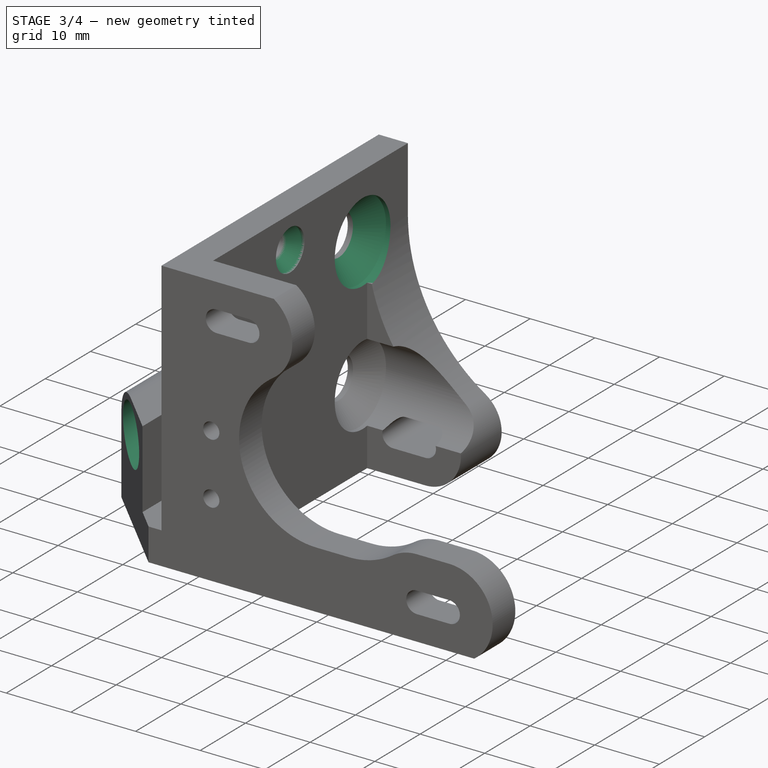
[diagram: stage 3 of 4 — iso view after this stage's code; geometry added in this stage tinted green]
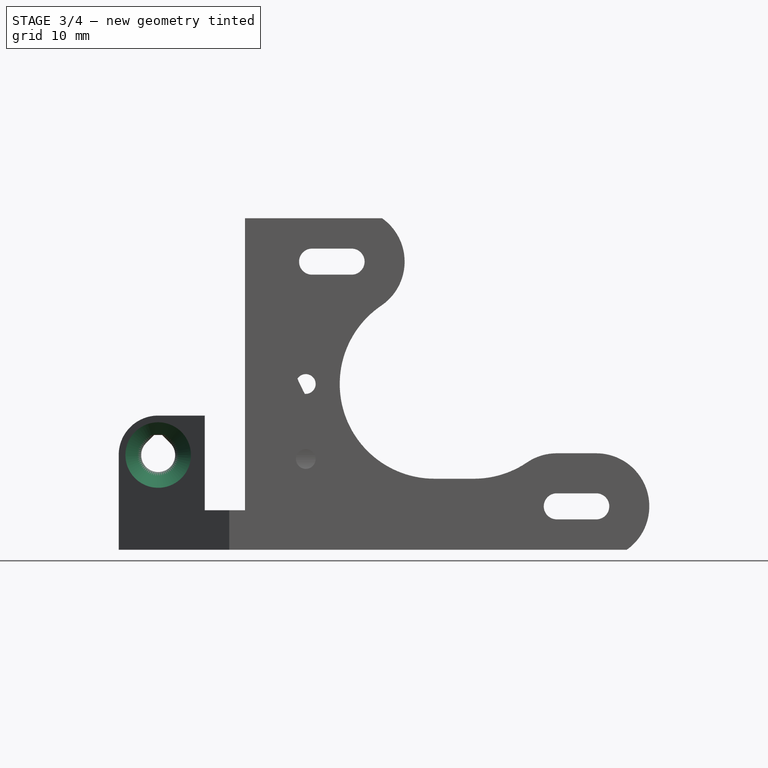
[diagram: stage 3 of 4 — front view after this stage's code; geometry added in this stage tinted green]
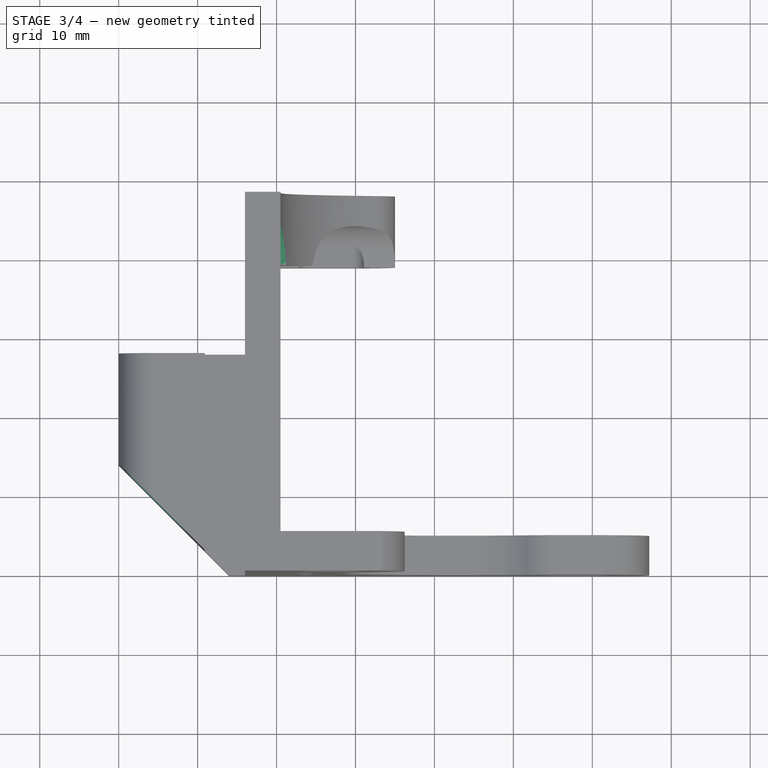
[diagram: stage 3 of 4 — top view after this stage's code; geometry added in this stage tinted green]
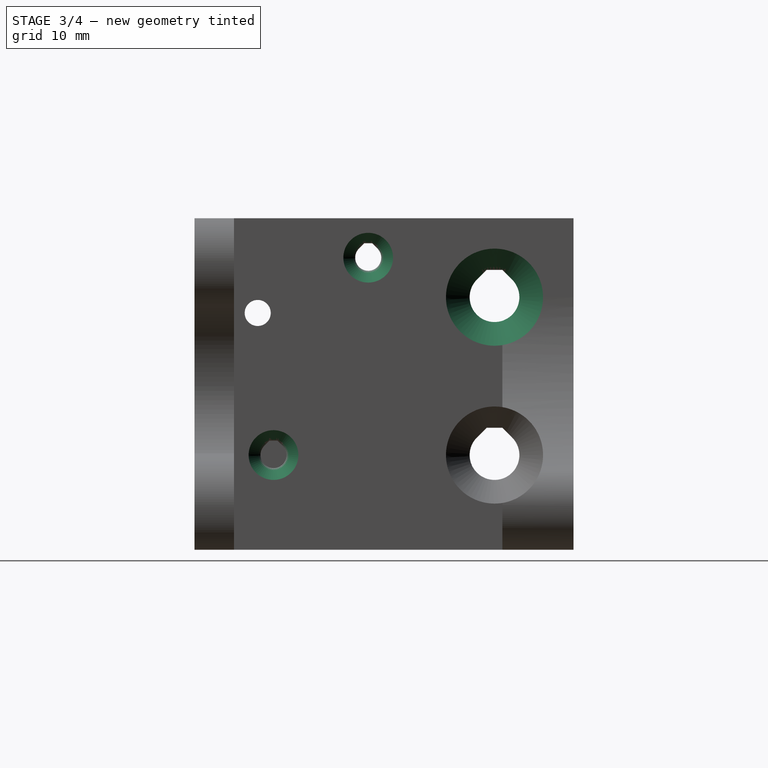
[diagram: stage 3 of 4 — right view after this stage's code; geometry added in this stage tinted green]
FEATURE [Sketcher::SketchObject] Sketch009
  AttachmentOffset = pos=(0,0,120.5) rot=(0,0,1;0rad)
  MapMode = 5
  Placement = pos=(120.5,-1.4e-11,1.4e-11) rot=(0.57735,0.57735,0.57735;2.0944rad)
  Support = -> [YZ_Plane]
  expr: Constraints[1] = sheet1.dy - sheet1.RailEndBolt2Y
  expr: Constraints[0] = sheet1.RailEndBolt2Z
  expr: AttachmentOffset.Base.z = sheet1.ExtrusionInsetX + sheet1.ExtrusionPlateX + 100
  sketch-geometry (1):
    g0: Circle CenterX=38 CenterY=32 CenterZ=0 NormalX=0 NormalY=0 NormalZ=1 AngleXU=0 Radius=6.15
  constraints (3):
    c: DistanceY(g-1,g0) = 32
    c: DistanceX(g-2,g0) = 38
    c: Radius(g0) = 6.15
FEATURE [Sketcher::SketchObject] Sketch010
  AttachmentOffset = pos=(0,0,19.8) rot=(0,0,1;0rad)
  MapMode = 5
  Placement = pos=(19.8,-2e-12,2e-12) rot=(0.57735,0.57735,0.57735;2.0944rad)
  Support = -> [YZ_Plane]
  expr: Constraints[1] = sheet1.dy - sheet1.RailEndBolt1Y
  expr: Constraints[0] = sheet1.RailEndBolt2Z
  expr: AttachmentOffset.Base.z = sheet1.ExtrusionInsetX + sheet1.ExtrusionPlateX - 0.69999999999999996
  sketch-geometry (1):
    g0: Circle CenterX=38 CenterY=32 CenterZ=0 NormalX=0 NormalY=0 NormalZ=1 AngleXU=0 Radius=6.15
  constraints (3):
    c: DistanceY(g-1,g0) = 32
    c: DistanceX(g-2,g0) = 38
    c: Radius(g0) = 6.15
FEATURE [Sketcher::SketchObject] Sketch011
  AttachmentOffset = pos=(0,0,16.8) rot=(0,0,1;0rad)
  MapMode = 5
  Placement = pos=(16.8,-2e-12,2e-12) rot=(0.57735,0.57735,0.57735;2.0944rad)
  Support = -> [YZ_Plane]
  expr: Constraints[1] = sheet1.dy - sheet1.RailEndBolt1Y
  expr: Constraints[0] = sheet1.RailEndBolt2Z
  expr: AttachmentOffset.Base.z = sheet1.ExtrusionInsetX + sheet1.ExtrusionPlateX - 0.69999999999999996 - 3
  sketch-geometry (1):
    g0: Circle CenterX=38 CenterY=32 CenterZ=0 NormalX=0 NormalY=0 NormalZ=1 AngleXU=0 Radius=3.15
  constraints (3):
    c: DistanceY(g-1,g0) = 32
    c: DistanceX(g-2,g0) = 38
    c: Radius(g0) = 3.15
FEATURE [PartDesign::SubtractiveLoft] SubtractiveLoft001
  BaseFeature = -> SubtractiveLoft
  Closed = true
  Profile = -> Sketch009
  Ruled = true
  Sections = -> [Sketch010,Sketch011]
FEATURE [Sketcher::SketchObject] Sketch012
  AttachmentOffset = pos=(0,0,120.5) rot=(0,0,1;0rad)
  MapMode = 5
  Placement = pos=(120.5,-1.4e-11,1.4e-11) rot=(0.57735,0.57735,0.57735;2.0944rad)
  Support = -> [YZ_Plane]
  expr: Constraints[1] = sheet1.SidePlateHole1Y
  expr: Constraints[0] = sheet1.SidePlateHole1Z
  expr: AttachmentOffset.Base.z = sheet1.ExtrusionInsetX + sheet1.ExtrusionPlateX + 100
  sketch-geometry (1):
    g0: Circle CenterX=10 CenterY=12 CenterZ=0 NormalX=0 NormalY=0 NormalZ=1 AngleXU=0 Radius=3.15
  constraints (3):
    c: DistanceY(g-1,g0) = 12
    c: DistanceX(g-2,g0) = 10
    c: Radius(g0) = 3.15
FEATURE [Sketcher::SketchObject] Sketch013
  AttachmentOffset = pos=(0,0,20) rot=(0,0,1;0rad)
  MapMode = 5
  Placement = pos=(20,-2e-12,2e-12) rot=(0.57735,0.57735,0.57735;2.0944rad)
  Support = -> [YZ_Plane]
  expr: Constraints[1] = sheet1.SidePlateHole1Y
  expr: Constraints[0] = sheet1.RailEndBolt1Z
  expr: AttachmentOffset.Base.z = sheet1.ExtrusionInsetX + sheet1.ExtrusionPlateX - 0.5
  sketch-geometry (1):
    g0: Circle CenterX=10 CenterY=12 CenterZ=0 NormalX=0 NormalY=0 NormalZ=1 AngleXU=0 Radius=3.15
  constraints (3):
    c: DistanceY(g-1,g0) = 12
    c: DistanceX(g-2,g0) = 10
    c: Radius(g0) = 3.15
FEATURE [Sketcher::SketchObject] Sketch014
  AttachmentOffset = pos=(0,0,18.2) rot=(0,0,1;0rad)
  MapMode = 5
  Placement = pos=(18.2,-2e-12,2e-12) rot=(0.57735,0.57735,0.57735;2.0944rad)
  Support = -> [YZ_Plane]
  expr: Constraints[2] = sheet1.M3Clearance / 2
  expr: Constraints[1] = sheet1.SidePlateHole1Y
  expr: Constraints[0] = sheet1.SidePlateHole1Z
  expr: AttachmentOffset.Base.z = sheet1.ExtrusionInsetX + sheet1.ExtrusionPlateX - 0.5 - 1.8
  sketch-geometry (1):
    g0: Circle CenterX=10 CenterY=12 CenterZ=0 NormalX=0 NormalY=0 NormalZ=1 AngleXU=0 Radius=1.65
  constraints (3):
    c: DistanceY(g-1,g0) = 12
    c: DistanceX(g-2,g0) = 10
    c: Radius(g0) = 1.65
FEATURE [PartDesign::SubtractiveLoft] SubtractiveLoft002
  BaseFeature = -> SubtractiveLoft001
  Closed = true
  Profile = -> Sketch014
  Ruled = true
  Sections = -> [Sketch013,Sketch012]
FEATURE [Sketcher::SketchObject] Sketch015
  AttachmentOffset = pos=(0,0,18.2) rot=(0,0,1;0rad)
  MapMode = 5
  Placement = pos=(18.2,-2e-12,2e-12) rot=(0.57735,0.57735,0.57735;2.0944rad)
  Support = -> [YZ_Plane]
  expr: Constraints[2] = sheet1.M3Clearance / 2
  expr: Constraints[1] = sheet1.SidePlateHole2Y
  expr: Constraints[0] = sheet1.SidePlateHole2Z
  expr: AttachmentOffset.Base.z = sheet1.ExtrusionInsetX + sheet1.ExtrusionPlateX - 0.5 - 1.8
  sketch-geometry (1):
    g0: Circle CenterX=22 CenterY=37 CenterZ=0 NormalX=0 NormalY=0 NormalZ=1 AngleXU=0 Radius=1.65
  constraints (3):
    c: DistanceY(g-1,g0) = 37
    c: DistanceX(g-2,g0) = 22
    c: Radius(g0) = 1.65
FEATURE [Sketcher::SketchObject] Sketch016
  AttachmentOffset = pos=(0,0,120.5) rot=(0,0,1;0rad)
  MapMode = 5
  Placement = pos=(120.5,-1.4e-11,1.4e-11) rot=(0.57735,0.57735,0.57735;2.0944rad)
  Support = -> [YZ_Plane]
  expr: Constraints[1] = sheet1.SidePlateHole2Y
  expr: Constraints[0] = sheet1.SidePlateHole2Z
  expr: AttachmentOffset.Base.z = sheet1.ExtrusionInsetX + sheet1.ExtrusionPlateX + 100
  sketch-geometry (1):
    g0: Circle CenterX=22 CenterY=37 CenterZ=0 NormalX=0 NormalY=0 NormalZ=1 AngleXU=0 Radius=3.15
  constraints (3):
    c: DistanceY(g-1,g0) = 37
    c: DistanceX(g-2,g0) = 22
    c: Radius(g0) = 3.15
FEATURE [Sketcher::SketchObject] Sketch017
  AttachmentOffset = pos=(0,0,20) rot=(0,0,1;0rad)
  MapMode = 5
  Placement = pos=(20,-2e-12,2e-12) rot=(0.57735,0.57735,0.57735;2.0944rad)
  Support = -> [YZ_Plane]
  expr: Constraints[1] = sheet1.SidePlateHole2Y
  expr: Constraints[0] = sheet1.SidePlateHole2Z
  expr: AttachmentOffset.Base.z = sheet1.ExtrusionInsetX + sheet1.ExtrusionPlateX - 0.5
  sketch-geometry (1):
    g0: Circle CenterX=22 CenterY=37 CenterZ=0 NormalX=0 NormalY=0 NormalZ=1 AngleXU=0 Radius=3.15
  constraints (3):
    c: DistanceY(g-1,g0) = 37
    c: DistanceX(g-2,g0) = 22
    c: Radius(g0) = 3.15
FEATURE [PartDesign::SubtractiveLoft] SubtractiveLoft003
  BaseFeature = -> SubtractiveLoft002
  Closed = true
  Profile = -> Sketch015
  Ruled = true
  Sections = -> [Sketch017,Sketch016]
FEATURE [Sketcher::SketchObject] Sketch018
  AttachmentOffset = pos=(0,0,-22.5) rot=(0,0,1;0rad)
  MapMode = 5
  Placement = pos=(0,22.5,2e-12) rot=(1,0,0;1.5708rad)
  Support = -> [XZ_Plane]
  expr: AttachmentOffset.Base.z = -(sheet1.ExtBossDy - 5.5)
  expr: Constraints[2] = sheet1.ExtrChannelBoltX
  expr: Constraints[1] = sheet1.ExtrChannelBoltZ
  expr: Constraints[0] = sheet1.M4Clearance / 2
  sketch-geometry (1):
    g0: Circle CenterX=5 CenterY=12 CenterZ=0 NormalX=0 NormalY=0 NormalZ=1 AngleXU=0 Radius=2.15
  constraints (3):
    c: Radius(g0) = 2.15
    c: DistanceY(g-1,g0) = 12
    c: DistanceX(g-2,g0) = 5
FEATURE [Sketcher::SketchObject] Sketch019
  AttachmentOffset = pos=(0,0,-20.5) rot=(0,0,1;0rad)
  MapMode = 5
  Placement = pos=(0,20.5,2e-12) rot=(1,0,0;1.5708rad)
  Support = -> [XZ_Plane]
  expr: AttachmentOffset.Base.z = -(sheet1.ExtBossDy - 5.5 - 2)
  expr: Constraints[2] = sheet1.ExtrChannelBoltX
  expr: Constraints[1] = sheet1.ExtrChannelBoltZ
  expr: Constraints[0] = sheet1.M4Clearance / 2 + 2
  sketch-geometry (1):
    g0: Circle CenterX=5 CenterY=12 CenterZ=0 NormalX=0 NormalY=0 NormalZ=1 AngleXU=0 Radius=4.15
  constraints (3):
    c: Radius(g0) = 4.15
    c: DistanceY(g-1,g0) = 12
    c: DistanceX(g-2,g0) = 5
FEATURE [Sketcher::SketchObject] Sketch020
  MapMode = 5
  Placement = pos=(0,0,0) rot=(1,0,0;1.5708rad)
  Support = -> [XZ_Plane]
  expr: AttachmentOffset.Base.z = 0
  expr: Constraints[2] = sheet1.ExtrChannelBoltX
  expr: Constraints[1] = sheet1.ExtrChannelBoltZ
  expr: Constraints[0] = sheet1.M4Clearance / 2 + 2
  sketch-geometry (1):
    g0: Circle CenterX=5 CenterY=12 CenterZ=0 NormalX=0 NormalY=0 NormalZ=1 AngleXU=0 Radius=4.15
  constraints (3):
    c: Radius(g0) = 4.15
    c: DistanceY(g-1,g0) = 12
    c: DistanceX(g-2,g0) = 5
FEATURE [PartDesign::SubtractiveLoft] SubtractiveLoft004
  BaseFeature = -> SubtractiveLoft003
  Closed = true
  Profile = -> Sketch018
  Ruled = true
  Sections = -> [Sketch019,Sketch020]
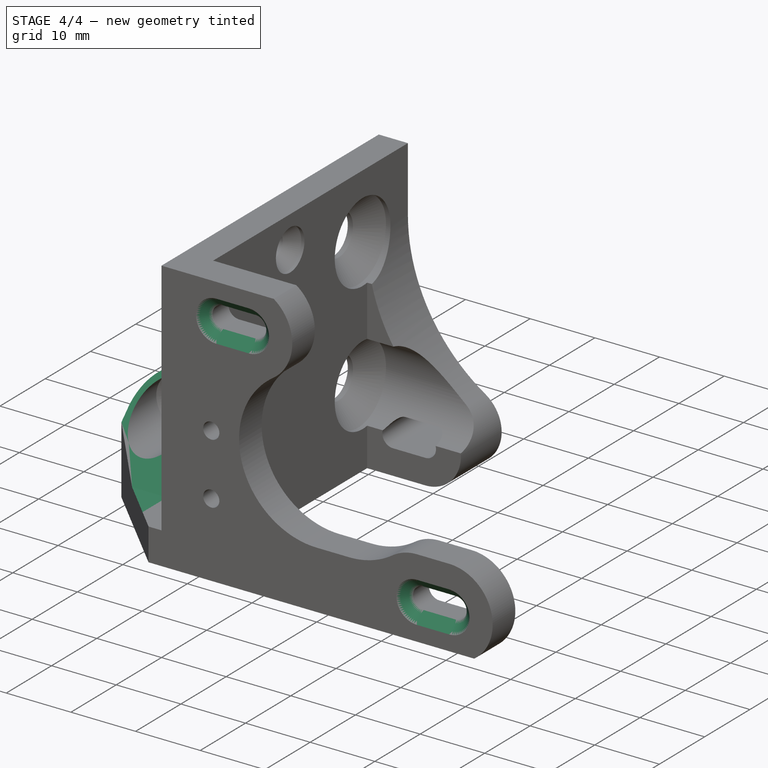
[diagram: stage 4 of 4 — iso view after this stage's code; geometry added in this stage tinted green]
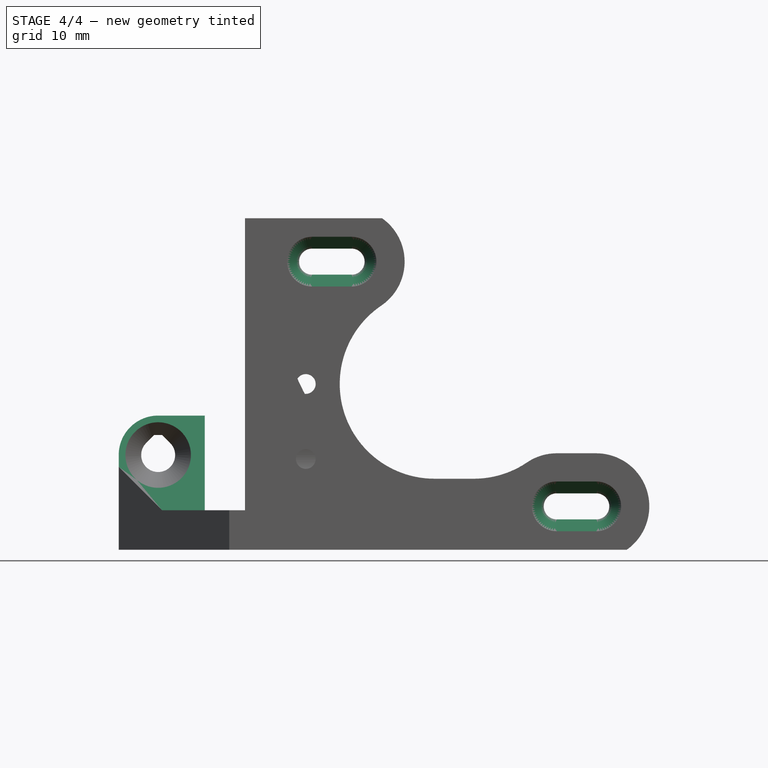
[diagram: stage 4 of 4 — front view after this stage's code; geometry added in this stage tinted green]
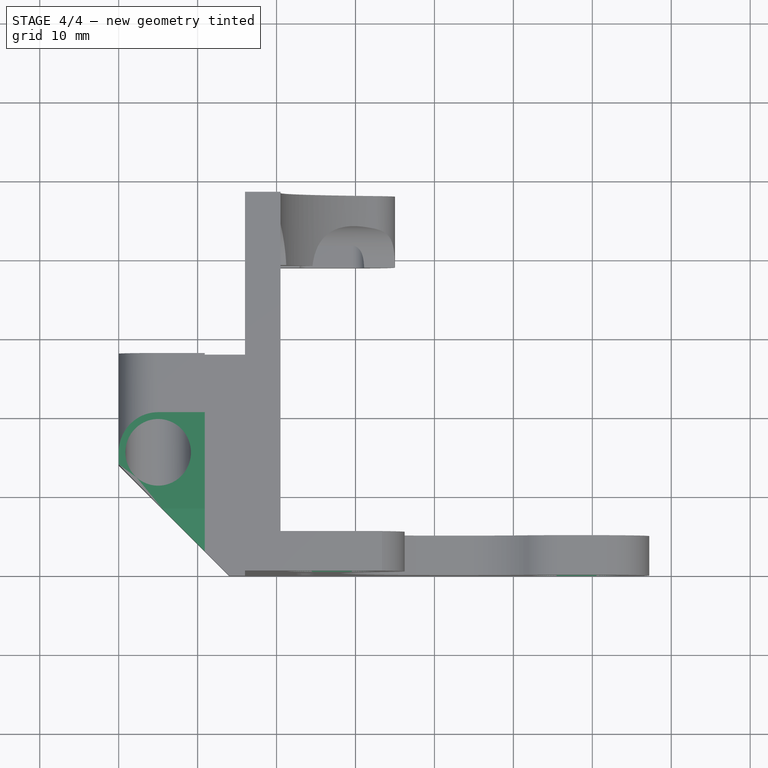
[diagram: stage 4 of 4 — top view after this stage's code; geometry added in this stage tinted green]
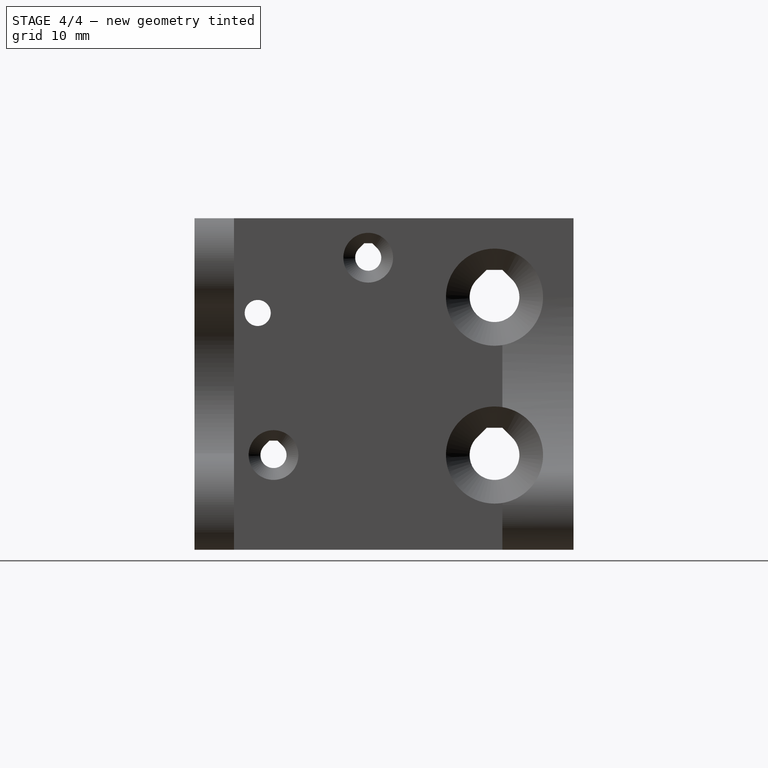
[diagram: stage 4 of 4 — right view after this stage's code; geometry added in this stage tinted green]
FEATURE [Sketcher::SketchObject] Sketch021
  AttachmentOffset = pos=(0,0,-1.5) rot=(0,0,1;0rad)
  MapMode = 5
  Placement = pos=(0,1.5,0) rot=(1,0,0;1.5708rad)
  Support = -> [XZ_Plane]
  expr: AttachmentOffset.Base.z = -1.5
  expr: Constraints[2] = sheet1.Nema17BoltSpacing
  expr: Constraints[1] = sheet1.Nema17BoltSpacing
  expr: Constraints[3] = sheet1.StepperH1X
  expr: Constraints[0] = sheet1.StepperH2Z
  expr: Constraints[20] = sheet1.M3Clearance / 2
  expr: Constraints[21] = sheet1.TensionLength
  sketch-geometry (10):
    g0: GeomPoint X=24.5 Y=36.5 Z=0
    g1: GeomPoint X=55.5 Y=5.5 Z=0
    g2: ArcOfCircle CenterX=24.5 CenterY=36.5 CenterZ=0 NormalX=0 NormalY=0 NormalZ=1 AngleXU=0 Radius=1.65 StartAngle=1.5708 EndAngle=4.71239
    g3: ArcOfCircle CenterX=29.5 CenterY=36.5 CenterZ=0 NormalX=0 NormalY=0 NormalZ=1 AngleXU=0 Radius=1.65 StartAngle=4.71239 EndAngle=7.85398
    g4: LineSegment StartX=24.5 StartY=34.85 StartZ=0 EndX=29.5 EndY=34.85 EndZ=0
    g5: LineSegment StartX=24.5 StartY=38.15 StartZ=0 EndX=29.5 EndY=38.15 EndZ=0
    g6: ArcOfCircle [constr] CenterX=55.5 CenterY=5.5 CenterZ=0 NormalX=0 NormalY=0 NormalZ=1 AngleXU=0 Radius=1.65 StartAngle=1.5708 EndAngle=4.71239
    g7: ArcOfCircle [constr] CenterX=60.5 CenterY=5.5 CenterZ=0 NormalX=0 NormalY=0 NormalZ=1 AngleXU=0 Radius=1.65 StartAngle=4.71239 EndAngle=7.85398
    g8: LineSegment [constr] StartX=55.5 StartY=3.85 StartZ=0 EndX=60.5 EndY=3.85 EndZ=0
    g9: LineSegment [constr] StartX=55.5 StartY=7.15 StartZ=0 EndX=60.5 EndY=7.15 EndZ=0
  constraints (22):
    c: DistanceY(g-1,g1) = 5.5
    c: DistanceX(g0,g1) = 31
    c: DistanceY(g1,g0) = 31
    c: DistanceX(g-2,g0) = 24.5
    c: Tangent(g2,g5) = 1.5708
    c: Tangent(g2,g4) = -1.5708
    c: Tangent(g4,g3) = -1.5708
    c: Tangent(g5,g3) = 1.5708
    c: Horizontal(g4)
    c: Equal(g2,g3)
    c: Coincident(g2,g0)
    c: Tangent(g6,g9) = 1.5708
    c: Tangent(g6,g8) = -1.5708
    c: Tangent(g8,g7) = -1.5708
    c: Tangent(g9,g7) = 1.5708
    c: Horizontal(g8)
    c: Equal(g6,g7)
    c: Coincident(g6,g1)
    c: Equal(g2,g6)
    c: Equal(g5,g9)
    c: Radius(g3) = 1.65
    c: Distance(g5) = 5
FEATURE [Sketcher::SketchObject] Sketch022
  MapMode = 5
  Placement = pos=(0,0,0) rot=(1,0,0;1.5708rad)
  Support = -> [XZ_Plane]
  expr: Constraints[2] = sheet1.Nema17BoltSpacing
  expr: Constraints[1] = sheet1.Nema17BoltSpacing
  expr: Constraints[3] = sheet1.StepperH1X
  expr: Constraints[0] = sheet1.StepperH2Z
  expr: Constraints[20] = sheet1.M3Clearance / 2 + 1.5
  expr: Constraints[21] = sheet1.TensionLength
  sketch-geometry (10):
    g0: GeomPoint X=24.5 Y=36.5 Z=0
    g1: GeomPoint X=55.5 Y=5.5 Z=0
    g2: ArcOfCircle CenterX=24.5 CenterY=36.5 CenterZ=0 NormalX=0 NormalY=0 NormalZ=1 AngleXU=0 Radius=3.15 StartAngle=1.5708 EndAngle=4.71239
    g3: ArcOfCircle CenterX=29.5 CenterY=36.5 CenterZ=0 NormalX=0 NormalY=0 NormalZ=1 AngleXU=0 Radius=3.15 StartAngle=4.71239 EndAngle=7.85398
    g4: LineSegment StartX=24.5 StartY=33.35 StartZ=0 EndX=29.5 EndY=33.35 EndZ=0
    g5: LineSegment StartX=24.5 StartY=39.65 StartZ=0 EndX=29.5 EndY=39.65 EndZ=0
    g6: ArcOfCircle [constr] CenterX=55.5 CenterY=5.5 CenterZ=0 NormalX=0 NormalY=0 NormalZ=1 AngleXU=0 Radius=3.15 StartAngle=1.5708 EndAngle=4.71239
    g7: ArcOfCircle [constr] CenterX=60.5 CenterY=5.5 CenterZ=0 NormalX=0 NormalY=0 NormalZ=1 AngleXU=0 Radius=3.15 StartAngle=4.71239 EndAngle=7.85398
    g8: LineSegment [constr] StartX=55.5 StartY=2.35 StartZ=0 EndX=60.5 EndY=2.35 EndZ=0
    g9: LineSegment [constr] StartX=55.5 StartY=8.65 StartZ=0 EndX=60.5 EndY=8.65 EndZ=0
  constraints (22):
    c: DistanceY(g-1,g1) = 5.5
    c: DistanceX(g0,g1) = 31
    c: DistanceY(g1,g0) = 31
    c: DistanceX(g-2,g0) = 24.5
    c: Tangent(g2,g5) = 1.5708
    c: Tangent(g2,g4) = -1.5708
    c: Tangent(g4,g3) = -1.5708
    c: Tangent(g5,g3) = 1.5708
    c: Horizontal(g4)
    c: Equal(g2,g3)
    c: Coincident(g2,g0)
    c: Tangent(g6,g9) = 1.5708
    c: Tangent(g6,g8) = -1.5708
    c: Tangent(g8,g7) = -1.5708
    c: Tangent(g9,g7) = 1.5708
    c: Horizontal(g8)
    c: Equal(g6,g7)
    c: Coincident(g6,g1)
    c: Equal(g2,g6)
    c: Equal(g5,g9)
    c: Radius(g3) = 3.15
    c: Distance(g5) = 5
FEATURE [Sketcher::SketchObject] Sketch023
  AttachmentOffset = pos=(0,0,2) rot=(0,0,1;0rad)
  MapMode = 5
  Placement = pos=(0,-2,0) rot=(1,0,0;1.5708rad)
  Support = -> [XZ_Plane]
  expr: AttachmentOffset.Base.z = 2
  expr: Constraints[2] = sheet1.Nema17BoltSpacing
  expr: Constraints[1] = sheet1.Nema17BoltSpacing
  expr: Constraints[3] = sheet1.StepperH1X
  expr: Constraints[0] = sheet1.StepperH2Z
  expr: Constraints[20] = sheet1.M3Clearance / 2 + 1.5
  expr: Constraints[21] = sheet1.TensionLength
  sketch-geometry (10):
    g0: GeomPoint X=24.5 Y=36.5 Z=0
    g1: GeomPoint X=55.5 Y=5.5 Z=0
    g2: ArcOfCircle CenterX=24.5 CenterY=36.5 CenterZ=0 NormalX=0 NormalY=0 NormalZ=1 AngleXU=0 Radius=3.15 StartAngle=1.5708 EndAngle=4.71239
    g3: ArcOfCircle CenterX=29.5 CenterY=36.5 CenterZ=0 NormalX=0 NormalY=0 NormalZ=1 AngleXU=0 Radius=3.15 StartAngle=4.71239 EndAngle=7.85398
    g4: LineSegment StartX=24.5 StartY=33.35 StartZ=0 EndX=29.5 EndY=33.35 EndZ=0
    g5: LineSegment StartX=24.5 StartY=39.65 StartZ=0 EndX=29.5 EndY=39.65 EndZ=0
    g6: ArcOfCircle [constr] CenterX=55.5 CenterY=5.5 CenterZ=0 NormalX=0 NormalY=0 NormalZ=1 AngleXU=0 Radius=3.15 StartAngle=1.5708 EndAngle=4.71239
    g7: ArcOfCircle [constr] CenterX=60.5 CenterY=5.5 CenterZ=0 NormalX=0 NormalY=0 NormalZ=1 AngleXU=0 Radius=3.15 StartAngle=4.71239 EndAngle=7.85398
    g8: LineSegment [constr] StartX=55.5 StartY=2.35 StartZ=0 EndX=60.5 EndY=2.35 EndZ=0
    g9: LineSegment [constr] StartX=55.5 StartY=8.65 StartZ=0 EndX=60.5 EndY=8.65 EndZ=0
  constraints (22):
    c: DistanceY(g-1,g1) = 5.5
    c: DistanceX(g0,g1) = 31
    c: DistanceY(g1,g0) = 31
    c: DistanceX(g-2,g0) = 24.5
    c: Tangent(g2,g5) = 1.5708
    c: Tangent(g2,g4) = -1.5708
    c: Tangent(g4,g3) = -1.5708
    c: Tangent(g5,g3) = 1.5708
    c: Horizontal(g4)
    c: Equal(g2,g3)
    c: Coincident(g2,g0)
    c: Tangent(g6,g9) = 1.5708
    c: Tangent(g6,g8) = -1.5708
    c: Tangent(g8,g7) = -1.5708
    c: Tangent(g9,g7) = 1.5708
    c: Horizontal(g8)
    c: Equal(g6,g7)
    c: Coincident(g6,g1)
    c: Equal(g2,g6)
    c: Equal(g5,g9)
    c: Radius(g3) = 3.15
    c: Distance(g5) = 5
FEATURE [PartDesign::SubtractiveLoft] SubtractiveLoft005
  BaseFeature = -> SubtractiveLoft004
  Closed = true
  Profile = -> Sketch021
  Ruled = true
  Sections = -> [Sketch022,Sketch023]
FEATURE [Sketcher::SketchObject] Sketch024
  AttachmentOffset = pos=(0,0,-1.5) rot=(0,0,1;0rad)
  MapMode = 5
  Placement = pos=(0,1.5,0) rot=(1,0,0;1.5708rad)
  Support = -> [XZ_Plane]
  expr: AttachmentOffset.Base.z = -1.5
  expr: Constraints[2] = sheet1.Nema17BoltSpacing
  expr: Constraints[1] = sheet1.Nema17BoltSpacing
  expr: Constraints[3] = sheet1.StepperH1X
  expr: Constraints[0] = sheet1.StepperH2Z
  expr: Constraints[20] = sheet1.M3Clearance / 2
  expr: Constraints[21] = sheet1.TensionLength
  sketch-geometry (10):
    g0: GeomPoint X=24.5 Y=36.5 Z=0
    g1: GeomPoint X=55.5 Y=5.5 Z=0
    g2: ArcOfCircle [constr] CenterX=24.5 CenterY=36.5 CenterZ=0 NormalX=0 NormalY=0 NormalZ=1 AngleXU=0 Radius=1.65 StartAngle=1.5708 EndAngle=4.71239
    g3: ArcOfCircle [constr] CenterX=29.5 CenterY=36.5 CenterZ=0 NormalX=0 NormalY=0 NormalZ=1 AngleXU=0 Radius=1.65 StartAngle=4.71239 EndAngle=7.85398
    g4: LineSegment [constr] StartX=24.5 StartY=34.85 StartZ=0 EndX=29.5 EndY=34.85 EndZ=0
    g5: LineSegment [constr] StartX=24.5 StartY=38.15 StartZ=0 EndX=29.5 EndY=38.15 EndZ=0
    g6: ArcOfCircle CenterX=55.5 CenterY=5.5 CenterZ=0 NormalX=0 NormalY=0 NormalZ=1 AngleXU=0 Radius=1.65 StartAngle=1.5708 EndAngle=4.71239
    g7: ArcOfCircle CenterX=60.5 CenterY=5.5 CenterZ=0 NormalX=0 NormalY=0 NormalZ=1 AngleXU=0 Radius=1.65 StartAngle=4.71239 EndAngle=7.85398
    g8: LineSegment StartX=55.5 StartY=3.85 StartZ=0 EndX=60.5 EndY=3.85 EndZ=0
    g9: LineSegment StartX=55.5 StartY=7.15 StartZ=0 EndX=60.5 EndY=7.15 EndZ=0
  constraints (22):
    c: DistanceY(g-1,g1) = 5.5
    c: DistanceX(g0,g1) = 31
    c: DistanceY(g1,g0) = 31
    c: DistanceX(g-2,g0) = 24.5
    c: Tangent(g2,g5) = 1.5708
    c: Tangent(g2,g4) = -1.5708
    c: Tangent(g4,g3) = -1.5708
    c: Tangent(g5,g3) = 1.5708
    c: Horizontal(g4)
    c: Equal(g2,g3)
    c: Coincident(g2,g0)
    c: Tangent(g6,g9) = 1.5708
    c: Tangent(g6,g8) = -1.5708
    c: Tangent(g8,g7) = -1.5708
    c: Tangent(g9,g7) = 1.5708
    c: Horizontal(g8)
    c: Equal(g6,g7)
    c: Coincident(g6,g1)
    c: Equal(g2,g6)
    c: Equal(g5,g9)
    c: Radius(g3) = 1.65
    c: Distance(g5) = 5
FEATURE [Sketcher::SketchObject] Sketch025
  MapMode = 5
  Placement = pos=(0,0,0) rot=(1,0,0;1.5708rad)
  Support = -> [XZ_Plane]
  expr: Constraints[2] = sheet1.Nema17BoltSpacing
  expr: Constraints[1] = sheet1.Nema17BoltSpacing
  expr: Constraints[3] = sheet1.StepperH1X
  expr: Constraints[0] = sheet1.StepperH2Z
  expr: Constraints[20] = sheet1.M3Clearance / 2 + 1.5
  expr: Constraints[21] = sheet1.TensionLength
  sketch-geometry (10):
    g0: GeomPoint X=24.5 Y=36.5 Z=0
    g1: GeomPoint X=55.5 Y=5.5 Z=0
    g2: ArcOfCircle [constr] CenterX=24.5 CenterY=36.5 CenterZ=0 NormalX=0 NormalY=0 NormalZ=1 AngleXU=0 Radius=3.15 StartAngle=1.5708 EndAngle=4.71239
    g3: ArcOfCircle [constr] CenterX=29.5 CenterY=36.5 CenterZ=0 NormalX=0 NormalY=0 NormalZ=1 AngleXU=0 Radius=3.15 StartAngle=4.71239 EndAngle=7.85398
    g4: LineSegment [constr] StartX=24.5 StartY=33.35 StartZ=0 EndX=29.5 EndY=33.35 EndZ=0
    g5: LineSegment [constr] StartX=24.5 StartY=39.65 StartZ=0 EndX=29.5 EndY=39.65 EndZ=0
    g6: ArcOfCircle CenterX=55.5 CenterY=5.5 CenterZ=0 NormalX=0 NormalY=0 NormalZ=1 AngleXU=0 Radius=3.15 StartAngle=1.5708 EndAngle=4.71239
    g7: ArcOfCircle CenterX=60.5 CenterY=5.5 CenterZ=0 NormalX=0 NormalY=0 NormalZ=1 AngleXU=0 Radius=3.15 StartAngle=4.71239 EndAngle=7.85398
    g8: LineSegment StartX=55.5 StartY=2.35 StartZ=0 EndX=60.5 EndY=2.35 EndZ=0
    g9: LineSegment StartX=55.5 StartY=8.65 StartZ=0 EndX=60.5 EndY=8.65 EndZ=0
  constraints (22):
    c: DistanceY(g-1,g1) = 5.5
    c: DistanceX(g0,g1) = 31
    c: DistanceY(g1,g0) = 31
    c: DistanceX(g-2,g0) = 24.5
    c: Tangent(g2,g5) = 1.5708
    c: Tangent(g2,g4) = -1.5708
    c: Tangent(g4,g3) = -1.5708
    c: Tangent(g5,g3) = 1.5708
    c: Horizontal(g4)
    c: Equal(g2,g3)
    c: Coincident(g2,g0)
    c: Tangent(g6,g9) = 1.5708
    c: Tangent(g6,g8) = -1.5708
    c: Tangent(g8,g7) = -1.5708
    c: Tangent(g9,g7) = 1.5708
    c: Horizontal(g8)
    c: Equal(g6,g7)
    c: Coincident(g6,g1)
    c: Equal(g2,g6)
    c: Equal(g5,g9)
    c: Radius(g3) = 3.15
    c: Distance(g5) = 5
FEATURE [Sketcher::SketchObject] Sketch026
  AttachmentOffset = pos=(0,0,2) rot=(0,0,1;0rad)
  MapMode = 5
  Placement = pos=(0,-2,0) rot=(1,0,0;1.5708rad)
  Support = -> [XZ_Plane]
  expr: AttachmentOffset.Base.z = 2
  expr: Constraints[2] = sheet1.Nema17BoltSpacing
  expr: Constraints[1] = sheet1.Nema17BoltSpacing
  expr: Constraints[3] = sheet1.StepperH1X
  expr: Constraints[0] = sheet1.StepperH2Z
  expr: Constraints[20] = sheet1.M3Clearance / 2 + 1.5
  expr: Constraints[21] = sheet1.TensionLength
  sketch-geometry (10):
    g0: GeomPoint X=24.5 Y=36.5 Z=0
    g1: GeomPoint X=55.5 Y=5.5 Z=0
    g2: ArcOfCircle [constr] CenterX=24.5 CenterY=36.5 CenterZ=0 NormalX=0 NormalY=0 NormalZ=1 AngleXU=0 Radius=3.15 StartAngle=1.5708 EndAngle=4.71239
    g3: ArcOfCircle [constr] CenterX=29.5 CenterY=36.5 CenterZ=0 NormalX=0 NormalY=0 NormalZ=1 AngleXU=0 Radius=3.15 StartAngle=4.71239 EndAngle=7.85398
    g4: LineSegment [constr] StartX=24.5 StartY=33.35 StartZ=0 EndX=29.5 EndY=33.35 EndZ=0
    g5: LineSegment [constr] StartX=24.5 StartY=39.65 StartZ=0 EndX=29.5 EndY=39.65 EndZ=0
    g6: ArcOfCircle CenterX=55.5 CenterY=5.5 CenterZ=0 NormalX=0 NormalY=0 NormalZ=1 AngleXU=0 Radius=3.15 StartAngle=1.5708 EndAngle=4.71239
    g7: ArcOfCircle CenterX=60.5 CenterY=5.5 CenterZ=0 NormalX=0 NormalY=0 NormalZ=1 AngleXU=0 Radius=3.15 StartAngle=4.71239 EndAngle=7.85398
    g8: LineSegment StartX=55.5 StartY=2.35 StartZ=0 EndX=60.5 EndY=2.35 EndZ=0
    g9: LineSegment StartX=55.5 StartY=8.65 StartZ=0 EndX=60.5 EndY=8.65 EndZ=0
  constraints (22):
    c: DistanceY(g-1,g1) = 5.5
    c: DistanceX(g0,g1) = 31
    c: DistanceY(g1,g0) = 31
    c: DistanceX(g-2,g0) = 24.5
    c: Tangent(g2,g5) = 1.5708
    c: Tangent(g2,g4) = -1.5708
    c: Tangent(g4,g3) = -1.5708
    c: Tangent(g5,g3) = 1.5708
    c: Horizontal(g4)
    c: Equal(g2,g3)
    c: Coincident(g2,g0)
    c: Tangent(g6,g9) = 1.5708
    c: Tangent(g6,g8) = -1.5708
    c: Tangent(g8,g7) = -1.5708
    c: Tangent(g9,g7) = 1.5708
    c: Horizontal(g8)
    c: Equal(g6,g7)
    c: Coincident(g6,g1)
    c: Equal(g2,g6)
    c: Equal(g5,g9)
    c: Radius(g3) = 3.15
    c: Distance(g5) = 5
FEATURE [PartDesign::SubtractiveLoft] SubtractiveLoft006
  BaseFeature = -> SubtractiveLoft005
  Closed = true
  Profile = -> Sketch024
  Ruled = true
  Sections = -> [Sketch025,Sketch026]
FEATURE [Sketcher::SketchObject] Sketch027
  MapMode = 5
  Placement = pos=(0,0,0) rot=(0.57735,0.57735,0.57735;2.0944rad)
  Support = -> [YZ_Plane]
  sketch-geometry (4):
    g0: LineSegment StartX=0 StartY=5 StartZ=0 EndX=8.5 EndY=5 EndZ=0
    g1: LineSegment StartX=8.5 StartY=5 StartZ=0 EndX=23.5 EndY=20 EndZ=0
    g2: LineSegment StartX=23.5 StartY=20 StartZ=0 EndX=0 EndY=20 EndZ=0
    g3: LineSegment StartX=0 StartY=20 StartZ=0 EndX=0 EndY=5 EndZ=0
  constraints (12):
    c: Coincident(g0,g1)
    c: Coincident(g1,g2)
    c: Coincident(g2,g3)
    c: Coincident(g0,g3)
    c: Vertical(g3)
    c: Horizontal(g2)
    c: Horizontal(g0)
    c: Distance(g0) = 8.5
    c: PointOnObject(g0,g-2)
    c: DistanceY(g-1,g0) = 5
    c: Angle(g1,g0) = 2.35619
    c: Distance(g2,g0) = 15
FEATURE [PartDesign::Pocket] Pocket004
  BaseFeature = -> SubtractiveLoft006
  Length = 10.9
  Length2 = 100
  Profile = -> Sketch027
  Reversed = true
  Type = 0
  expr: Length = sheet1.ExtrusionInsetX - sheet1.AcrylicSpace
FEATURE [PartDesign::Body] Body
  Group = -> [Sketch,Pad,Sketch002,Pocket,Sketch003,Pocket001,Sketch004,Pocket002,Sketch005,Pocket003,Sketch006,Sketch007,Sketch008,SubtractiveLoft,Sketch009,Sketch010,Sketch011,SubtractiveLoft001,Sketch012,Sketch013,Sketch014,SubtractiveLoft002,Sketch015,Sketch016,Sketch017,SubtractiveLoft003,Sketch018,Sketch019,Sketch020,SubtractiveLoft004,Sketch021,Sketch022,Sketch023,SubtractiveLoft005,Sketch024,Sketch025,+4 more]
  Origin = -> Origin
  Tip = -> Pocket004
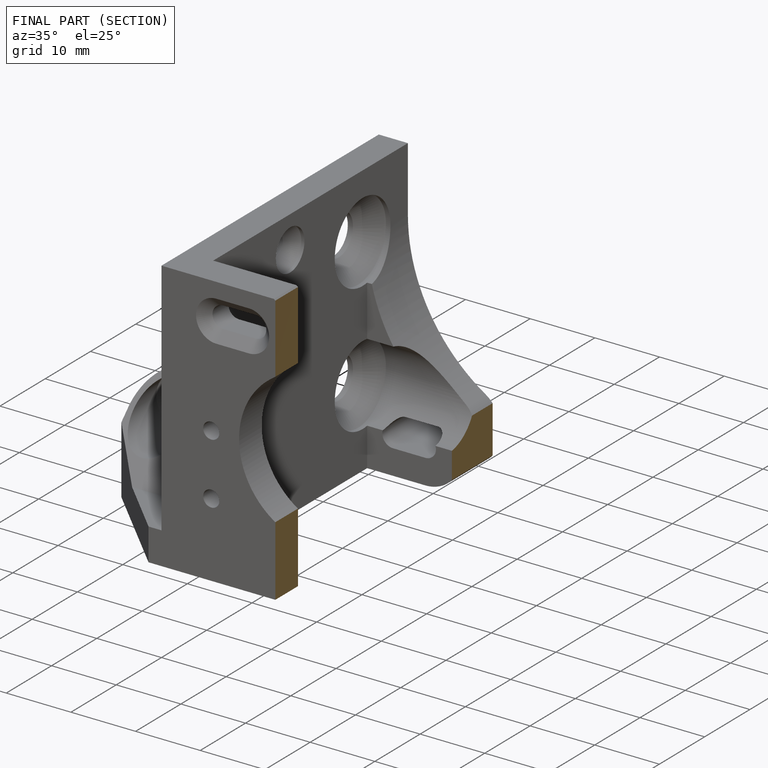
[diagram: finished part — half-section view (interior)]
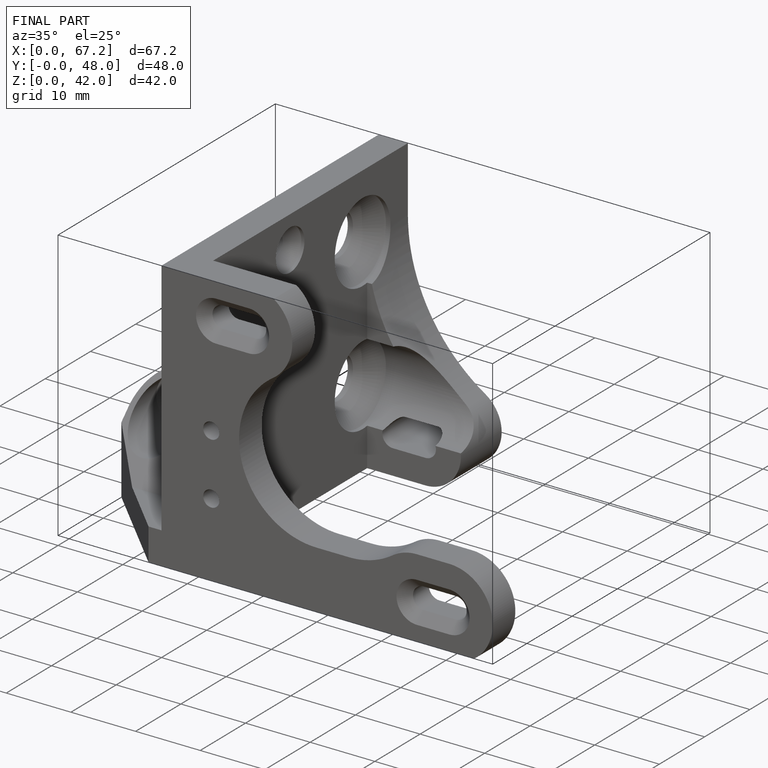
[diagram: finished part — iso view with bounding-box wireframe]
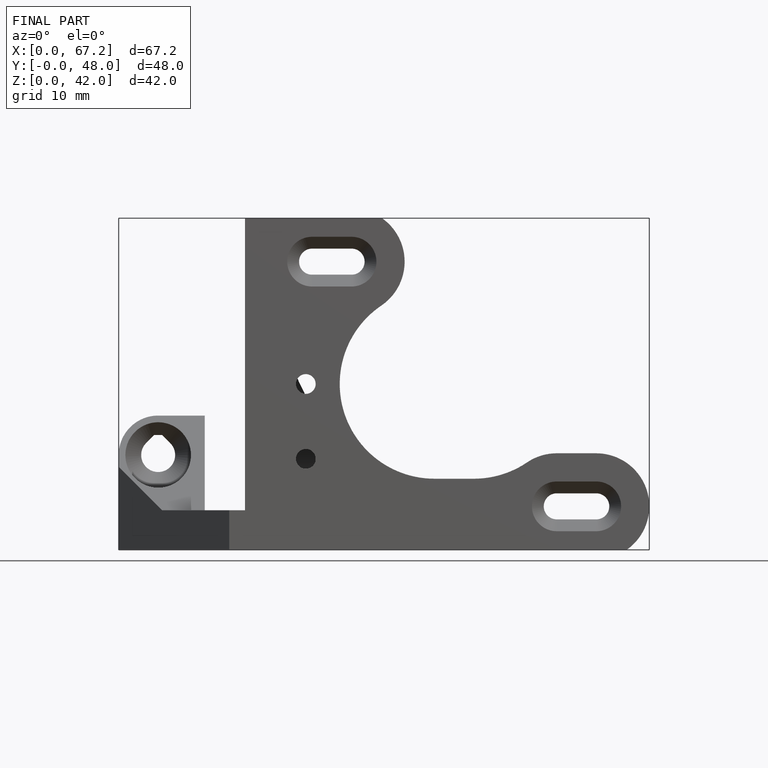
[diagram: finished part — front view with bounding-box wireframe]
